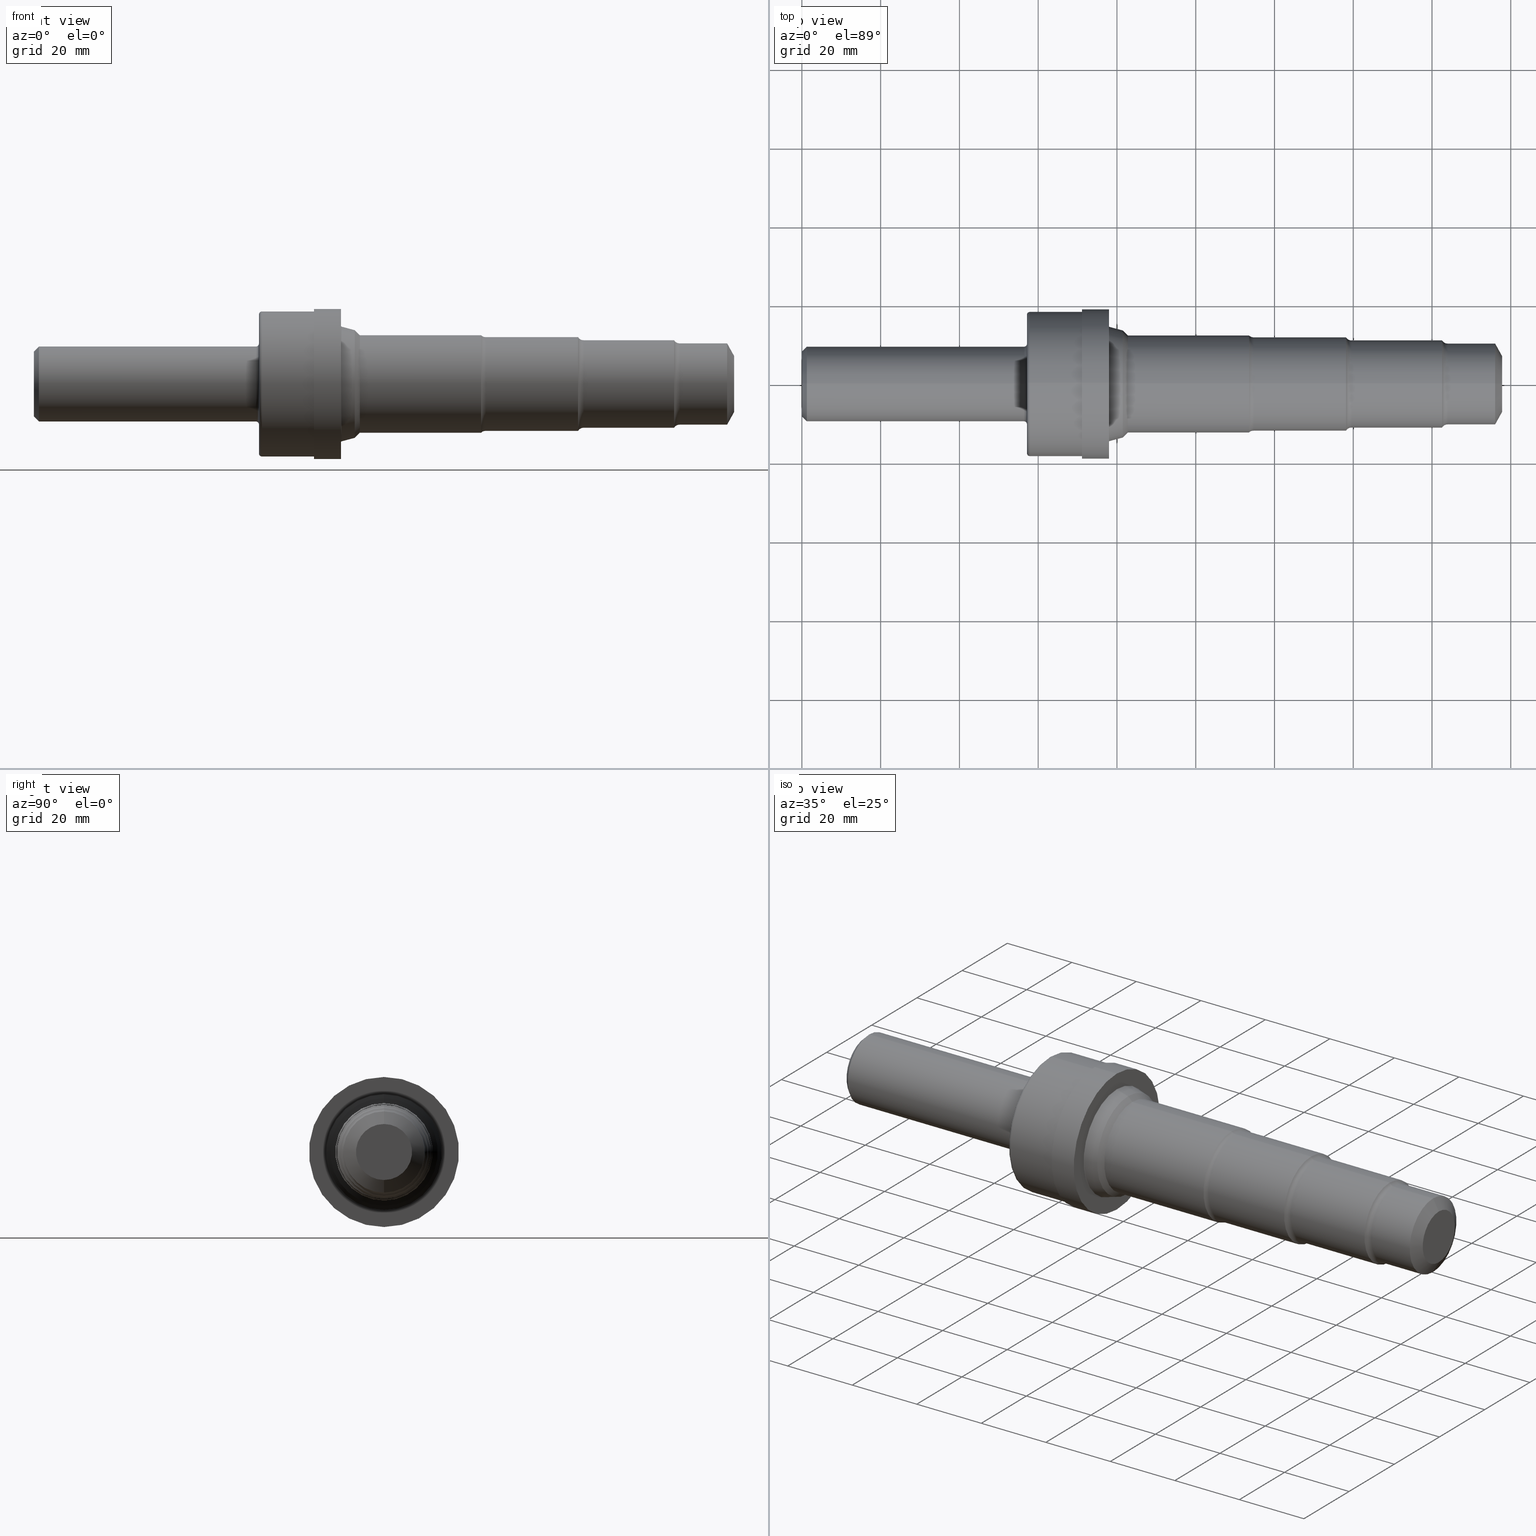
[diagram: canonical four-view strip — front | top / right | iso, engineering-drawing reading convention]
A machine part, canonical four-view strip (front | top / right | iso — engineering-drawing reading convention). The complete STEP part file that produces these views, byte-faithful:
ISO-10303-21;
HEADER;
FILE_DESCRIPTION (( 'STEP AP214' ),
    '1' );
FILE_NAME ('V12-4-FINISH-X8.STEP',
    '2019-03-22T16:18:09',
    ( '' ),
    ( '' ),
    'SwSTEP 2.0',
    'SolidWorks 2018',
    '' );
FILE_SCHEMA (( 'AUTOMOTIVE_DESIGN' ));
ENDSEC;

DATA;
#1 = DIRECTION ( 'NONE',  ( 0.0000000000000000000, 0.0000000000000000000, 1.000000000000000000 ) ) ;
#2 = DIRECTION ( 'NONE',  ( -0.0000000000000000000, 1.000000000000000000, 1.224646799147353207E-16 ) ) ;
#3 = AXIS2_PLACEMENT_3D ( 'NONE', #284, #470, #572 ) ;
#4 = ORIENTED_EDGE ( 'NONE', *, *, #298, .F. ) ;
#5 = CIRCLE ( 'NONE', #834, 0.3248500000000001386 ) ;
#6 = AXIS2_PLACEMENT_3D ( 'NONE', #243, #736, #156 ) ;
#7 = VECTOR ( 'NONE', #189, 39.37007874015748143 ) ;
#8 = APPLICATION_CONTEXT ( 'automotive_design' ) ;
#9 = AXIS2_PLACEMENT_3D ( 'NONE', #959, #324, #395 ) ;
#10 = EDGE_CURVE ( 'NONE', #241, #195, #15, .T. ) ;
#11 = DIRECTION ( 'NONE',  ( 0.0000000000000000000, 0.0000000000000000000, 1.000000000000000000 ) ) ;
#12 = EDGE_LOOP ( 'NONE', ( #302, #869, #685, #443 ) ) ;
#13 = AXIS2_PLACEMENT_3D ( 'NONE', #768, #109, #280 ) ;
#14 = ORIENTED_EDGE ( 'NONE', *, *, #378, .T. ) ;
#15 = LINE ( 'NONE', #398, #855 ) ;
#16 = ORIENTED_EDGE ( 'NONE', *, *, #126, .F. ) ;
#17 = EDGE_CURVE ( 'NONE', #287, #650, #423, .T. ) ;
#18 = EDGE_LOOP ( 'NONE', ( #532, #853, #24, #259 ) ) ;
#19 = FACE_OUTER_BOUND ( 'NONE', #1042, .T. ) ;
#20 = AXIS2_PLACEMENT_3D ( 'NONE', #740, #2, #245 ) ;
#21 = CIRCLE ( 'NONE', #81, 0.3748500000000000165 ) ;
#22 = ADVANCED_FACE ( 'NONE', ( #648 ), #200, .F. ) ;
#23 = DIRECTION ( 'NONE',  ( -1.000000000000000000, -0.0000000000000000000, -0.0000000000000000000 ) ) ;
#24 = ORIENTED_EDGE ( 'NONE', *, *, #966, .F. ) ;
#25 = ORIENTED_EDGE ( 'NONE', *, *, #460, .T. ) ;
#26 = CIRCLE ( 'NONE', #3, 0.4689000000000000390 ) ;
#27 = DIRECTION ( 'NONE',  ( -1.000000000000000000, -0.0000000000000000000, -0.0000000000000000000 ) ) ;
#28 = EDGE_CURVE ( 'NONE', #970, #329, #239, .T. ) ;
#29 = CIRCLE ( 'NONE', #1007, 0.06200000000000004813 ) ;
#30 = ORIENTED_EDGE ( 'NONE', *, *, #681, .T. ) ;
#31 = CARTESIAN_POINT ( 'NONE',  ( 2.279999999999999805, 0.0000000000000000000, 0.0000000000000000000 ) ) ;
#32 = CARTESIAN_POINT ( 'NONE',  ( 0.0000000000000000000, 4.976964591734842644E-17, -0.4063999999999999280 ) ) ;
#33 = AXIS2_PLACEMENT_3D ( 'NONE', #1005, #438, #535 ) ;
#34 = DIRECTION ( 'NONE',  ( -1.000000000000000000, -0.0000000000000000000, -0.0000000000000000000 ) ) ;
#35 = DIRECTION ( 'NONE',  ( -1.000000000000000000, -0.0000000000000000000, -0.0000000000000000000 ) ) ;
#36 = VERTEX_POINT ( 'NONE', #974 ) ;
#37 = EDGE_LOOP ( 'NONE', ( #751, #647, #669, #887 ) ) ;
#38 = ORIENTED_EDGE ( 'NONE', *, *, #177, .T. ) ;
#39 = AXIS2_PLACEMENT_3D ( 'NONE', #1030, #559, #60 ) ;
#40 = EDGE_LOOP ( 'NONE', ( #482, #757, #805, #932 ) ) ;
#41 = ORIENTED_EDGE ( 'NONE', *, *, #503, .T. ) ;
#42 = LINE ( 'NONE', #479, #730 ) ;
#43 = DIRECTION ( 'NONE',  ( -1.000000000000000000, -0.0000000000000000000, -0.0000000000000000000 ) ) ;
#44 = FACE_OUTER_BOUND ( 'NONE', #250, .T. ) ;
#45 = ADVANCED_FACE ( 'NONE', ( #615 ), #331, .F. ) ;
#46 = CARTESIAN_POINT ( 'NONE',  ( 3.258523011444504291, 0.0000000000000000000, 0.0000000000000000000 ) ) ;
#47 = DIRECTION ( 'NONE',  ( -1.000000000000000000, -0.0000000000000000000, -0.0000000000000000000 ) ) ;
#48 = VERTEX_POINT ( 'NONE', #897 ) ;
#49 = DIRECTION ( 'NONE',  ( -1.000000000000000000, -0.0000000000000000000, -0.0000000000000000000 ) ) ;
#50 = CARTESIAN_POINT ( 'NONE',  ( 3.207999999999999741, 0.0000000000000000000, 0.5380230114445049283 ) ) ;
#51 = CIRCLE ( 'NONE', #979, 0.4048500000000005983 ) ;
#52 = AXIS2_PLACEMENT_3D ( 'NONE', #618, #396, #402 ) ;
#53 = FILL_AREA_STYLE_COLOUR ( '', #829 ) ;
#54 = TOROIDAL_SURFACE ( 'NONE', #13, 0.4048500000000005983, 0.02999999999999995379 ) ;
#55 = DIRECTION ( 'NONE',  ( -1.000000000000000000, -0.0000000000000000000, -0.0000000000000000000 ) ) ;
#56 = CARTESIAN_POINT ( 'NONE',  ( 5.493693575034635401, 0.0000000000000000000, 0.0000000000000000000 ) ) ;
#57 = EDGE_LOOP ( 'NONE', ( #531, #971, #444, #590 ) ) ;
#58 = EDGE_CURVE ( 'NONE', #529, #523, #1044, .T. ) ;
#59 = CARTESIAN_POINT ( 'NONE',  ( 3.069999999999999396, 7.112196935576865621E-17, -0.5807549524098420957 ) ) ;
#60 = DIRECTION ( 'NONE',  ( 0.0000000000000000000, 0.0000000000000000000, 1.000000000000000000 ) ) ;
#61 = DIRECTION ( 'NONE',  ( -1.000000000000000000, -0.0000000000000000000, -0.0000000000000000000 ) ) ;
#62 = AXIS2_PLACEMENT_3D ( 'NONE', #228, #643, #945 ) ;
#63 = DIRECTION ( 'NONE',  ( 0.0000000000000000000, 0.0000000000000000000, 1.000000000000000000 ) ) ;
#64 = EDGE_CURVE ( 'NONE', #835, #94, #828, .T. ) ;
#65 = EDGE_LOOP ( 'NONE', ( #489, #317, #38, #536 ) ) ;
#66 = VERTEX_POINT ( 'NONE', #495 ) ;
#67 = ORIENTED_EDGE ( 'NONE', *, *, #58, .T. ) ;
#68 = ORIENTED_EDGE ( 'NONE', *, *, #79, .F. ) ;
#69 = EDGE_LOOP ( 'NONE', ( #563, #196, #613, #265 ) ) ;
#70 = CARTESIAN_POINT ( 'NONE',  ( 3.069999999999999396, 0.0000000000000000000, 0.5807549524098420957 ) ) ;
#71 = DIRECTION ( 'NONE',  ( 0.0000000000000000000, 0.0000000000000000000, 1.000000000000000000 ) ) ;
#72 = AXIS2_PLACEMENT_3D ( 'NONE', #31, #524, #601 ) ;
#73 = VERTEX_POINT ( 'NONE', #77 ) ;
#74 = FACE_OUTER_BOUND ( 'NONE', #260, .T. ) ;
#75 = SURFACE_STYLE_FILL_AREA ( #214 ) ;
#76 = DIRECTION ( 'NONE',  ( 0.0000000000000000000, 0.0000000000000000000, 1.000000000000000000 ) ) ;
#77 = CARTESIAN_POINT ( 'NONE',  ( 7.000000000000000000, 0.0000000000000000000, 0.2801166571309994247 ) ) ;
#78 = CIRCLE ( 'NONE', #20, 0.007500000000000193144 ) ;
#79 = EDGE_CURVE ( 'NONE', #646, #703, #1015, .T. ) ;
#80 = DIRECTION ( 'NONE',  ( 0.0000000000000000000, 0.0000000000000000000, 1.000000000000000000 ) ) ;
#81 = AXIS2_PLACEMENT_3D ( 'NONE', #794, #478, #1034 ) ;
#82 = DIRECTION ( 'NONE',  ( 1.000000000000000000, 0.0000000000000000000, 0.0000000000000000000 ) ) ;
#83 = DIRECTION ( 'NONE',  ( 0.0000000000000000000, 0.0000000000000000000, 1.000000000000000000 ) ) ;
#84 = DIRECTION ( 'NONE',  ( 0.0000000000000000000, 0.0000000000000000000, 1.000000000000000000 ) ) ;
#85 = VECTOR ( 'NONE', #627, 39.37007874015748143 ) ;
#86 = DIRECTION ( 'NONE',  ( -1.000000000000000000, -0.0000000000000000000, -0.0000000000000000000 ) ) ;
#87 = ORIENTED_EDGE ( 'NONE', *, *, #352, .T. ) ;
#88 = CYLINDRICAL_SURFACE ( 'NONE', #533, 0.4874999999999999889 ) ;
#89 = EDGE_CURVE ( 'NONE', #953, #318, #401, .T. ) ;
#90 = DIRECTION ( 'NONE',  ( 0.0000000000000000000, 0.0000000000000000000, 1.000000000000000000 ) ) ;
#91 = AXIS2_PLACEMENT_3D ( 'NONE', #610, #376, #964 ) ;
#92 = PLANE ( 'NONE',  #1045 ) ;
#93 = EDGE_LOOP ( 'NONE', ( #657, #320, #473, #262 ) ) ;
#94 = VERTEX_POINT ( 'NONE', #238 ) ;
#95 = EDGE_LOOP ( 'NONE', ( #101, #888, #1048, #729 ) ) ;
#96 = AXIS2_PLACEMENT_3D ( 'NONE', #226, #795, #882 ) ;
#97 = ADVANCED_FACE ( 'NONE', ( #176 ), #577, .T. ) ;
#98 = CIRCLE ( 'NONE', #969, 0.06200000000000011752 ) ;
#99 = ORIENTED_EDGE ( 'NONE', *, *, #10, .F. ) ;
#100 = EDGE_LOOP ( 'NONE', ( #453, #753, #561, #599 ) ) ;
#101 = ORIENTED_EDGE ( 'NONE', *, *, #966, .T. ) ;
#102 = ORIENTED_EDGE ( 'NONE', *, *, #656, .T. ) ;
#103 = DIRECTION ( 'NONE',  ( 0.0000000000000000000, 0.0000000000000000000, 1.000000000000000000 ) ) ;
#104 = LINE ( 'NONE', #1023, #85 ) ;
#105 = FACE_OUTER_BOUND ( 'NONE', #93, .T. ) ;
#106 = AXIS2_PLACEMENT_3D ( 'NONE', #148, #235, #291 ) ;
#107 = DIRECTION ( 'NONE',  ( -1.000000000000000000, -0.0000000000000000000, -0.0000000000000000000 ) ) ;
#108 = EDGE_CURVE ( 'NONE', #826, #507, #987, .T. ) ;
#109 = DIRECTION ( 'NONE',  ( -1.000000000000000000, -0.0000000000000000000, -0.0000000000000000000 ) ) ;
#110 = DIRECTION ( 'NONE',  ( -1.000000000000000000, -0.0000000000000000000, -0.0000000000000000000 ) ) ;
#111 = AXIS2_PLACEMENT_3D ( 'NONE', #46, #864, #63 ) ;
#112 = ORIENTED_EDGE ( 'NONE', *, *, #709, .F. ) ;
#113 = ADVANCED_FACE ( 'NONE', ( #778 ), #973, .T. ) ;
#114 = DIRECTION ( 'NONE',  ( 0.0000000000000000000, 0.0000000000000000000, 1.000000000000000000 ) ) ;
#115 = DIRECTION ( 'NONE',  ( -0.9659258262890685343, 0.0000000000000000000, 0.2588190451025196293 ) ) ;
#116 = ORIENTED_EDGE ( 'NONE', *, *, #17, .F. ) ;
#117 = EDGE_CURVE ( 'NONE', #703, #646, #130, .T. ) ;
#118 = EDGE_LOOP ( 'NONE', ( #112, #87, #411, #305 ) ) ;
#119 = PRODUCT_DEFINITION_FORMATION_WITH_SPECIFIED_SOURCE ( 'ANY', '', #257, .NOT_KNOWN. ) ;
#120 = CARTESIAN_POINT ( 'NONE',  ( 4.514276856256965509, 5.856260993522642888E-17, -0.4689000000000000390 ) ) ;
#121 = TOROIDAL_SURFACE ( 'NONE', #540, 0.4998999999999999555, 0.06200000000000008282 ) ;
#122 = AXIS2_PLACEMENT_3D ( 'NONE', #204, #776, #299 ) ;
#123 = ORIENTED_EDGE ( 'NONE', *, *, #440, .T. ) ;
#124 = CARTESIAN_POINT ( 'NONE',  ( 2.220000000000000195, 4.590588526603861143E-17, -0.3748500000000006271 ) ) ;
#125 = CARTESIAN_POINT ( 'NONE',  ( 3.207999999999999741, 6.806179838027394654E-17, -0.5380230114445049283 ) ) ;
#126 = EDGE_CURVE ( 'NONE', #441, #36, #348, .T. ) ;
#127 = ORIENTED_EDGE ( 'NONE', *, *, #955, .F. ) ;
#128 = CARTESIAN_POINT ( 'NONE',  ( 0.0000000000000000000, 0.0000000000000000000, 0.0000000000000000000 ) ) ;
#129 = VERTEX_POINT ( 'NONE', #560 ) ;
#130 = CIRCLE ( 'NONE', #677, 0.4063999999999999280 ) ;
#131 = DIRECTION ( 'NONE',  ( -1.000000000000000000, -0.0000000000000000000, -0.0000000000000000000 ) ) ;
#132 = CARTESIAN_POINT ( 'NONE',  ( 3.075558857161730941, 0.0000000000000000000, 0.5735105087126738388 ) ) ;
#133 = CARTESIAN_POINT ( 'NONE',  ( 7.000000000000000000, 0.0000000000000000000, 0.0000000000000000000 ) ) ;
#134 = CIRCLE ( 'NONE', #316, 0.7249999999999998668 ) ;
#135 = ADVANCED_FACE ( 'NONE', ( #592, #809 ), #801, .F. ) ;
#136 = DIRECTION ( 'NONE',  ( 0.0000000000000000000, -1.224646799147353700E-16, 1.000000000000000000 ) ) ;
#137 = UNCERTAINTY_MEASURE_WITH_UNIT (LENGTH_MEASURE( 1.000000000000000082E-05 ), #382, 'distance_accuracy_value', 'NONE');
#138 = DIRECTION ( 'NONE',  ( 0.0000000000000000000, 0.0000000000000000000, 1.000000000000000000 ) ) ;
#139 = CARTESIAN_POINT ( 'NONE',  ( 2.250000000000000000, 0.0000000000000000000, 0.0000000000000000000 ) ) ;
#140 = CARTESIAN_POINT ( 'NONE',  ( 3.207999999999999741, 0.0000000000000000000, 0.5380230114445049283 ) ) ;
#141 = EDGE_CURVE ( 'NONE', #73, #775, #547, .T. ) ;
#142 = CARTESIAN_POINT ( 'NONE',  ( 0.05000000000000000278, 0.0000000000000000000, 0.0000000000000000000 ) ) ;
#143 = DIRECTION ( 'NONE',  ( -1.000000000000000000, -0.0000000000000000000, -0.0000000000000000000 ) ) ;
#144 = VERTEX_POINT ( 'NONE', #632 ) ;
#145 = DIRECTION ( 'NONE',  ( 0.0000000000000000000, 0.0000000000000000000, -1.000000000000000000 ) ) ;
#146 = AXIS2_PLACEMENT_3D ( 'NONE', #734, #110, #205 ) ;
#147 = DIRECTION ( 'NONE',  ( 0.0000000000000000000, -1.224646799147352221E-16, 1.000000000000000000 ) ) ;
#148 = CARTESIAN_POINT ( 'NONE',  ( 4.514276856256965509, 0.0000000000000000000, 0.0000000000000000000 ) ) ;
#149 = DIRECTION ( 'NONE',  ( 0.0000000000000000000, 0.0000000000000000000, 1.000000000000000000 ) ) ;
#150 = CARTESIAN_POINT ( 'NONE',  ( 5.493693575034635401, 0.0000000000000000000, 0.0000000000000000000 ) ) ;
#151 = CIRCLE ( 'NONE', #490, 0.4874999999999999889 ) ;
#152 = CARTESIAN_POINT ( 'NONE',  ( 2.250000000000000000, 0.0000000000000000000, 0.6949999999999999512 ) ) ;
#153 = AXIS2_PLACEMENT_3D ( 'NONE', #799, #812, #407 ) ;
#154 = DIRECTION ( 'NONE',  ( -1.000000000000000000, -0.0000000000000000000, -0.0000000000000000000 ) ) ;
#155 = ORIENTED_EDGE ( 'NONE', *, *, #687, .T. ) ;
#156 = DIRECTION ( 'NONE',  ( 0.0000000000000000000, 0.0000000000000000000, 1.000000000000000000 ) ) ;
#157 = ORIENTED_EDGE ( 'NONE', *, *, #230, .F. ) ;
#158 = CARTESIAN_POINT ( 'NONE',  ( 0.0000000000000000000, 0.0000000000000000000, 0.0000000000000000000 ) ) ;
#159 = CIRCLE ( 'NONE', #767, 0.5735105087126738388 ) ;
#160 = DIRECTION ( 'NONE',  ( 0.0000000000000000000, 0.0000000000000000000, 1.000000000000000000 ) ) ;
#161 = LENGTH_MEASURE_WITH_UNIT ( LENGTH_MEASURE( 0.02539999999999999897 ), #412 );
#162 = EDGE_LOOP ( 'NONE', ( #989, #581, #454, #909 ) ) ;
#163 = LINE ( 'NONE', #995, #351 ) ;
#164 = CARTESIAN_POINT ( 'NONE',  ( 3.069999999999999840, 0.0000000000000000000, 0.0000000000000000000 ) ) ;
#165 = AXIS2_PLACEMENT_3D ( 'NONE', #851, #474, #567 ) ;
#166 = EDGE_CURVE ( 'NONE', #917, #144, #332, .T. ) ;
#167 = AXIS2_PLACEMENT_3D ( 'NONE', #319, #392, #80 ) ;
#168 = LINE ( 'NONE', #541, #1001 ) ;
#169 = DIRECTION ( 'NONE',  ( 1.000000000000000000, 0.0000000000000000000, 0.0000000000000000000 ) ) ;
#170 = EDGE_CURVE ( 'NONE', #431, #695, #159, .T. ) ;
#171 = TOROIDAL_SURFACE ( 'NONE', #422, 0.6949999999999999512, 0.02999999999999995379 ) ;
#172 =( GEOMETRIC_REPRESENTATION_CONTEXT ( 3 ) GLOBAL_UNCERTAINTY_ASSIGNED_CONTEXT ( ( #435 ) ) GLOBAL_UNIT_ASSIGNED_CONTEXT ( ( #906, #980, #816 ) ) REPRESENTATION_CONTEXT ( 'NONE', 'WORKASPACE' ) );
#173 = ADVANCED_FACE ( 'NONE', ( #763 ), #940, .F. ) ;
#174 = AXIS2_PLACEMENT_3D ( 'NONE', #363, #449, #850 ) ;
#175 = ORIENTED_EDGE ( 'NONE', *, *, #467, .F. ) ;
#176 = FACE_OUTER_BOUND ( 'NONE', #603, .T. ) ;
#177 = EDGE_CURVE ( 'NONE', #288, #66, #741, .T. ) ;
#178 = VECTOR ( 'NONE', #61, 39.37007874015748143 ) ;
#179 = CARTESIAN_POINT ( 'NONE',  ( 3.069999999999999840, 0.0000000000000000000, 0.7500000000000001110 ) ) ;
#180 = FACE_OUTER_BOUND ( 'NONE', #286, .T. ) ;
#181 = CARTESIAN_POINT ( 'NONE',  ( 4.469999999999999751, 0.0000000000000000000, 0.4874999999999999889 ) ) ;
#182 = CARTESIAN_POINT ( 'NONE',  ( 3.075558857161730941, 7.067837511650164673E-17, -0.5735105087126738388 ) ) ;
#183 = CIRCLE ( 'NONE', #165, 0.4689000000000000390 ) ;
#184 = EDGE_LOOP ( 'NONE', ( #655, #842 ) ) ;
#185 = EDGE_CURVE ( 'NONE', #421, #431, #104, .T. ) ;
#186 = CARTESIAN_POINT ( 'NONE',  ( 2.220000000000000195, 0.0000000000000000000, 0.3748500000000006271 ) ) ;
#187 = CIRCLE ( 'NONE', #616, 0.4063999999999999835 ) ;
#188 = AXIS2_PLACEMENT_3D ( 'NONE', #928, #857, #296 ) ;
#189 = DIRECTION ( 'NONE',  ( -1.000000000000000000, -0.0000000000000000000, -0.0000000000000000000 ) ) ;
#190 = DIRECTION ( 'NONE',  ( 0.0000000000000000000, 0.0000000000000000000, 1.000000000000000000 ) ) ;
#191 = CIRCLE ( 'NONE', #39, 0.4874999999999999889 ) ;
#192 = ADVANCED_FACE ( 'NONE', ( #517 ), #273, .T. ) ;
#193 = CARTESIAN_POINT ( 'NONE',  ( 6.453979162646339418, 0.0000000000000000000, 0.4683999999999999830 ) ) ;
#194 = AXIS2_PLACEMENT_3D ( 'NONE', #640, #566, #147 ) ;
#195 = VERTEX_POINT ( 'NONE', #997 ) ;
#196 = ORIENTED_EDGE ( 'NONE', *, *, #921, .T. ) ;
#197 = ORIENTED_EDGE ( 'NONE', *, *, #1002, .F. ) ;
#198 = VERTEX_POINT ( 'NONE', #50 ) ;
#199 = CARTESIAN_POINT ( 'NONE',  ( 2.220000000000000195, 0.0000000000000000000, 0.0000000000000000000 ) ) ;
#200 = TOROIDAL_SURFACE ( 'NONE', #605, 0.4683999999999999830, 0.06200000000000001343 ) ;
#201 = ADVANCED_FACE ( 'NONE', ( #919 ), #902, .T. ) ;
#202 = ORIENTED_EDGE ( 'NONE', *, *, #352, .F. ) ;
#203 = LINE ( 'NONE', #1008, #1049 ) ;
#204 = CARTESIAN_POINT ( 'NONE',  ( 3.207999999999999741, 0.0000000000000000000, 0.0000000000000000000 ) ) ;
#205 = DIRECTION ( 'NONE',  ( 0.0000000000000000000, 0.0000000000000000000, 1.000000000000000000 ) ) ;
#206 = CIRCLE ( 'NONE', #62, 0.4379000000000000115 ) ;
#207 = CARTESIAN_POINT ( 'NONE',  ( 2.250000000000000000, 0.0000000000000000000, 0.0000000000000000000 ) ) ;
#208 = ADVANCED_FACE ( 'NONE', ( #498 ), #468, .T. ) ;
#209 = DIRECTION ( 'NONE',  ( -1.000000000000000000, -0.0000000000000000000, -0.0000000000000000000 ) ) ;
#210 = DIRECTION ( 'NONE',  ( -1.000000000000000000, -0.0000000000000000000, -0.0000000000000000000 ) ) ;
#211 = EDGE_CURVE ( 'NONE', #830, #703, #303, .T. ) ;
#212 = CARTESIAN_POINT ( 'NONE',  ( 0.0000000000000000000, 0.0000000000000000000, 0.0000000000000000000 ) ) ;
#213 = DIRECTION ( 'NONE',  ( -1.000000000000000000, -0.0000000000000000000, -0.0000000000000000000 ) ) ;
#214 = FILL_AREA_STYLE ('',( #708 ) ) ;
#215 = DIRECTION ( 'NONE',  ( 0.0000000000000000000, 0.0000000000000000000, 1.000000000000000000 ) ) ;
#216 = ORIENTED_EDGE ( 'NONE', *, *, #836, .T. ) ;
#217 = DIRECTION ( 'NONE',  ( 0.0000000000000000000, 0.0000000000000000000, 1.000000000000000000 ) ) ;
#218 = AXIS2_PLACEMENT_3D ( 'NONE', #354, #1000, #300 ) ;
#219 = FACE_OUTER_BOUND ( 'NONE', #958, .T. ) ;
#220 = ORIENTED_EDGE ( 'NONE', *, *, #914, .T. ) ;
#221 =( NAMED_UNIT ( * ) PLANE_ANGLE_UNIT ( ) SI_UNIT ( $, .RADIAN. ) );
#222 = DIRECTION ( 'NONE',  ( 0.0000000000000000000, 0.0000000000000000000, 1.000000000000000000 ) ) ;
#223 = CARTESIAN_POINT ( 'NONE',  ( 0.0000000000000000000, 0.0000000000000000000, 0.7249999999999998668 ) ) ;
#224 = FACE_OUTER_BOUND ( 'NONE', #446, .T. ) ;
#225 = EDGE_CURVE ( 'NONE', #543, #48, #51, .T. ) ;
#226 = CARTESIAN_POINT ( 'NONE',  ( 5.493693575034635401, 0.0000000000000000000, 0.4998999999999999555 ) ) ;
#227 = DIRECTION ( 'NONE',  ( -1.000000000000000000, -0.0000000000000000000, -0.0000000000000000000 ) ) ;
#228 = CARTESIAN_POINT ( 'NONE',  ( 6.399999999999999467, 0.0000000000000000000, 0.0000000000000000000 ) ) ;
#229 = CARTESIAN_POINT ( 'NONE',  ( 2.279999999999999805, 0.0000000000000000000, 0.0000000000000000000 ) ) ;
#230 = EDGE_CURVE ( 'NONE', #195, #886, #251, .T. ) ;
#231 = CARTESIAN_POINT ( 'NONE',  ( 3.069999999999999840, 0.0000000000000000000, 0.0000000000000000000 ) ) ;
#232 = ORIENTED_EDGE ( 'NONE', *, *, #499, .T. ) ;
#233 = DIRECTION ( 'NONE',  ( 0.0000000000000000000, -1.224646799147352221E-16, 1.000000000000000000 ) ) ;
#234 = ORIENTED_EDGE ( 'NONE', *, *, #347, .T. ) ;
#235 = DIRECTION ( 'NONE',  ( -1.000000000000000000, -0.0000000000000000000, -0.0000000000000000000 ) ) ;
#236 = EDGE_LOOP ( 'NONE', ( #232, #1011, #386, #349 ) ) ;
#237 = EDGE_LOOP ( 'NONE', ( #346, #691 ) ) ;
#238 = CARTESIAN_POINT ( 'NONE',  ( 0.05000000000000000278, 0.0000000000000000000, -0.3748500000000000165 ) ) ;
#239 = CIRCLE ( 'NONE', #430, 0.5807549524098420957 ) ;
#240 = CARTESIAN_POINT ( 'NONE',  ( 2.799999999999999822, 0.0000000000000000000, 0.0000000000000000000 ) ) ;
#241 = VERTEX_POINT ( 'NONE', #714 ) ;
#242 = FACE_OUTER_BOUND ( 'NONE', #515, .T. ) ;
#243 = CARTESIAN_POINT ( 'NONE',  ( 0.0000000000000000000, 0.0000000000000000000, 0.0000000000000000000 ) ) ;
#244 = EDGE_CURVE ( 'NONE', #198, #695, #658, .T. ) ;
#245 = DIRECTION ( 'NONE',  ( 0.0000000000000000000, -1.224646799147356905E-16, 1.000000000000000000 ) ) ;
#246 = CYLINDRICAL_SURFACE ( 'NONE', #340, 0.3748500000000003496 ) ;
#247 = CARTESIAN_POINT ( 'NONE',  ( 3.069999999999999396, 0.0000000000000000000, 0.0000000000000000000 ) ) ;
#248 = CARTESIAN_POINT ( 'NONE',  ( 3.258523011444504291, 0.0000000000000000000, 0.0000000000000000000 ) ) ;
#249 = VECTOR ( 'NONE', #701, 39.37007874015748854 ) ;
#250 = EDGE_LOOP ( 'NONE', ( #911, #984, #30, #1009 ) ) ;
#251 = CIRCLE ( 'NONE', #924, 0.4378999999999998449 ) ;
#252 = DIRECTION ( 'NONE',  ( -1.000000000000000000, -0.0000000000000000000, -0.0000000000000000000 ) ) ;
#253 = LINE ( 'NONE', #688, #875 ) ;
#254 = EDGE_CURVE ( 'NONE', #645, #129, #26, .T. ) ;
#255 = APPLICATION_CONTEXT ( 'automotive_design' ) ;
#256 = AXIS2_PLACEMENT_3D ( 'NONE', #568, #552, #309 ) ;
#257 = PRODUCT ( 'V12-4-FINISH-X8', 'V12-4-FINISH-X8', '', ( #747 ) ) ;
#258 = DIRECTION ( 'NONE',  ( -0.0000000000000000000, 1.000000000000000000, 1.224646799147353207E-16 ) ) ;
#259 = ORIENTED_EDGE ( 'NONE', *, *, #385, .F. ) ;
#260 = EDGE_LOOP ( 'NONE', ( #679, #275, #712, #1041 ) ) ;
#261 = EDGE_LOOP ( 'NONE', ( #818, #939, #575, #202 ) ) ;
#262 = ORIENTED_EDGE ( 'NONE', *, *, #333, .F. ) ;
#263 = ORIENTED_EDGE ( 'NONE', *, *, #656, .F. ) ;
#264 = AXIS2_PLACEMENT_3D ( 'NONE', #719, #143, #876 ) ;
#265 = ORIENTED_EDGE ( 'NONE', *, *, #525, .F. ) ;
#266 = ORIENTED_EDGE ( 'NONE', *, *, #873, .F. ) ;
#267 = CIRCLE ( 'NONE', #218, 0.7249999999999998668 ) ;
#268 = CONICAL_SURFACE ( 'NONE', #808, 0.4874999999999999889, 0.7853981633974523868 ) ;
#269 = CARTESIAN_POINT ( 'NONE',  ( 0.0000000000000000000, 0.0000000000000000000, 0.0000000000000000000 ) ) ;
#270 = VERTEX_POINT ( 'NONE', #313 ) ;
#271 = EDGE_CURVE ( 'NONE', #270, #830, #872, .T. ) ;
#272 = ORIENTED_EDGE ( 'NONE', *, *, #948, .T. ) ;
#273 = CYLINDRICAL_SURFACE ( 'NONE', #1032, 0.4874999999999999889 ) ;
#274 = ADVANCED_FACE ( 'NONE', ( #219 ), #1028, .T. ) ;
#275 = ORIENTED_EDGE ( 'NONE', *, *, #584, .T. ) ;
#276 = AXIS2_PLACEMENT_3D ( 'NONE', #128, #357, #644 ) ;
#277 = CIRCLE ( 'NONE', #642, 0.5807549524098420957 ) ;
#278 = CARTESIAN_POINT ( 'NONE',  ( 0.0000000000000000000, 8.878689293818309581E-17, -0.7249999999999998668 ) ) ;
#279 = EDGE_CURVE ( 'NONE', #66, #288, #183, .T. ) ;
#280 = DIRECTION ( 'NONE',  ( 0.0000000000000000000, 0.0000000000000000000, 1.000000000000000000 ) ) ;
#281 = CARTESIAN_POINT ( 'NONE',  ( 2.250000000000000000, 8.694992273946205774E-17, -0.6949999999999999512 ) ) ;
#282 = AXIS2_PLACEMENT_3D ( 'NONE', #330, #652, #894 ) ;
#283 = CARTESIAN_POINT ( 'NONE',  ( 0.0000000000000000000, 4.590588526603858678E-17, -0.3748500000000003496 ) ) ;
#284 = CARTESIAN_POINT ( 'NONE',  ( 5.439999999999999503, 0.0000000000000000000, 0.0000000000000000000 ) ) ;
#285 = EDGE_CURVE ( 'NONE', #826, #917, #410, .T. ) ;
#286 = EDGE_LOOP ( 'NONE', ( #743, #735, #574, #127 ) ) ;
#287 = VERTEX_POINT ( 'NONE', #186 ) ;
#288 = VERTEX_POINT ( 'NONE', #120 ) ;
#289 = ADVANCED_FACE ( 'NONE', ( #631 ), #680, .F. ) ;
#290 = DIRECTION ( 'NONE',  ( 0.0000000000000000000, 0.0000000000000000000, -1.000000000000000000 ) ) ;
#291 = DIRECTION ( 'NONE',  ( 0.0000000000000000000, 0.0000000000000000000, 1.000000000000000000 ) ) ;
#292 = ORIENTED_EDGE ( 'NONE', *, *, #475, .T. ) ;
#293 = CIRCLE ( 'NONE', #660, 0.4874999999999999889 ) ;
#294 = COLOUR_RGB ( '',0.7529411764705882248, 0.7529411764705882248, 0.7529411764705882248 ) ;
#295 = DIRECTION ( 'NONE',  ( 0.0000000000000000000, 0.0000000000000000000, 1.000000000000000000 ) ) ;
#296 = DIRECTION ( 'NONE',  ( 0.0000000000000000000, 0.0000000000000000000, -1.000000000000000000 ) ) ;
#297 = CIRCLE ( 'NONE', #759, 0.6949999999999999512 ) ;
#298 = EDGE_CURVE ( 'NONE', #523, #529, #5, .T. ) ;
#299 = DIRECTION ( 'NONE',  ( 0.0000000000000000000, 0.0000000000000000000, 1.000000000000000000 ) ) ;
#300 = DIRECTION ( 'NONE',  ( 0.0000000000000000000, 0.0000000000000000000, 1.000000000000000000 ) ) ;
#301 = EDGE_LOOP ( 'NONE', ( #761, #737 ) ) ;
#302 = ORIENTED_EDGE ( 'NONE', *, *, #796, .F. ) ;
#303 = LINE ( 'NONE', #32, #706 ) ;
#304 = CARTESIAN_POINT ( 'NONE',  ( 7.000000000000000000, 0.0000000000000000000, 0.0000000000000000000 ) ) ;
#305 = ORIENTED_EDGE ( 'NONE', *, *, #836, .F. ) ;
#306 = DIRECTION ( 'NONE',  ( 0.0000000000000000000, 0.0000000000000000000, 1.000000000000000000 ) ) ;
#307 = FACE_OUTER_BOUND ( 'NONE', #118, .T. ) ;
#308 = SURFACE_STYLE_USAGE ( .BOTH. , #786 ) ;
#309 = DIRECTION ( 'NONE',  ( 0.0000000000000000000, 0.0000000000000000000, -1.000000000000000000 ) ) ;
#310 = CARTESIAN_POINT ( 'NONE',  ( 3.075558857161730941, 0.0000000000000000000, 0.0000000000000000000 ) ) ;
#311 = EDGE_LOOP ( 'NONE', ( #155, #885, #157, #99 ) ) ;
#312 = DIRECTION ( 'NONE',  ( -0.7071067811865445751, 8.659560562354967371E-17, -0.7071067811865503483 ) ) ;
#313 = CARTESIAN_POINT ( 'NONE',  ( 6.929999999999999716, 0.0000000000000000000, 0.4063999999999999835 ) ) ;
#314 = EDGE_CURVE ( 'NONE', #509, #953, #817, .T. ) ;
#315 = DIRECTION ( 'NONE',  ( -1.000000000000000000, -0.0000000000000000000, -0.0000000000000000000 ) ) ;
#316 = AXIS2_PLACEMENT_3D ( 'NONE', #429, #764, #350 ) ;
#317 = ORIENTED_EDGE ( 'NONE', *, *, #322, .T. ) ;
#318 = VERTEX_POINT ( 'NONE', #152 ) ;
#319 = CARTESIAN_POINT ( 'NONE',  ( 3.207999999999999741, 0.0000000000000000000, 0.0000000000000000000 ) ) ;
#320 = ORIENTED_EDGE ( 'NONE', *, *, #285, .T. ) ;
#321 = DIRECTION ( 'NONE',  ( -1.000000000000000000, -0.0000000000000000000, -0.0000000000000000000 ) ) ;
#322 = EDGE_CURVE ( 'NONE', #441, #288, #510, .T. ) ;
#323 = VERTEX_POINT ( 'NONE', #281 ) ;
#324 = DIRECTION ( 'NONE',  ( -1.000000000000000000, -0.0000000000000000000, -0.0000000000000000000 ) ) ;
#325 = CARTESIAN_POINT ( 'NONE',  ( 4.469999999999999751, 0.0000000000000000000, 0.0000000000000000000 ) ) ;
#326 = AXIS2_PLACEMENT_3D ( 'NONE', #207, #131, #1021 ) ;
#327 = TOROIDAL_SURFACE ( 'NONE', #698, 0.5807549524098420957, 0.007500000000000209624 ) ;
#328 = CARTESIAN_POINT ( 'NONE',  ( 2.799999999999999822, 9.184850993605150903E-17, -0.7500000000000001110 ) ) ;
#329 = VERTEX_POINT ( 'NONE', #70 ) ;
#330 = CARTESIAN_POINT ( 'NONE',  ( 3.069999999999999840, 0.7500000000000001110, 0.0000000000000000000 ) ) ;
#331 = PLANE ( 'NONE',  #583 ) ;
#332 = CIRCLE ( 'NONE', #716, 0.7500000000000001110 ) ;
#333 = EDGE_CURVE ( 'NONE', #507, #144, #912, .T. ) ;
#334 = LINE ( 'NONE', #918, #944 ) ;
#335 = DIRECTION ( 'NONE',  ( -1.000000000000000000, -0.0000000000000000000, -0.0000000000000000000 ) ) ;
#336 = AXIS2_PLACEMENT_3D ( 'NONE', #546, #787, #215 ) ;
#337 = EDGE_CURVE ( 'NONE', #441, #534, #293, .T. ) ;
#338 = SURFACE_SIDE_STYLE ('',( #619 ) ) ;
#339 = ORIENTED_EDGE ( 'NONE', *, *, #347, .F. ) ;
#340 = AXIS2_PLACEMENT_3D ( 'NONE', #881, #555, #11 ) ;
#341 = CARTESIAN_POINT ( 'NONE',  ( 2.220000000000000195, 4.957982566348066292E-17, -0.4048500000000005983 ) ) ;
#342 = STYLED_ITEM ( 'NONE', ( #404 ), #748 ) ;
#343 = CIRCLE ( 'NONE', #326, 0.6949999999999999512 ) ;
#344 = ADVANCED_FACE ( 'NONE', ( #491 ), #893, .T. ) ;
#345 = EDGE_LOOP ( 'NONE', ( #898, #663, #910, #827 ) ) ;
#346 = ORIENTED_EDGE ( 'NONE', *, *, #1026, .F. ) ;
#347 = EDGE_CURVE ( 'NONE', #129, #66, #42, .T. ) ;
#348 = LINE ( 'NONE', #957, #369 ) ;
#349 = ORIENTED_EDGE ( 'NONE', *, *, #89, .F. ) ;
#350 = DIRECTION ( 'NONE',  ( 0.0000000000000000000, 0.0000000000000000000, 1.000000000000000000 ) ) ;
#351 = VECTOR ( 'NONE', #847, 39.37007874015748143 ) ;
#352 = EDGE_CURVE ( 'NONE', #739, #953, #267, .T. ) ;
#353 = CARTESIAN_POINT ( 'NONE',  ( 2.799999999999999822, 0.0000000000000000000, 0.7249999999999998668 ) ) ;
#354 = CARTESIAN_POINT ( 'NONE',  ( 2.279999999999999805, 0.0000000000000000000, 0.0000000000000000000 ) ) ;
#355 = EDGE_CURVE ( 'NONE', #695, #431, #674, .T. ) ;
#356 = ADVANCED_FACE ( 'NONE', ( #74 ), #651, .T. ) ;
#357 = DIRECTION ( 'NONE',  ( -1.000000000000000000, -0.0000000000000000000, -0.0000000000000000000 ) ) ;
#358 = AXIS2_PLACEMENT_3D ( 'NONE', #133, #210, #839 ) ;
#359 = LINE ( 'NONE', #461, #249 ) ;
#360 = ORIENTED_EDGE ( 'NONE', *, *, #562, .F. ) ;
#361 = DIRECTION ( 'NONE',  ( -1.000000000000000000, -0.0000000000000000000, -0.0000000000000000000 ) ) ;
#362 = TOROIDAL_SURFACE ( 'NONE', #365, 0.5308999999999999275, 0.06199999999999990935 ) ;
#363 = CARTESIAN_POINT ( 'NONE',  ( 0.0000000000000000000, 0.0000000000000000000, 0.0000000000000000000 ) ) ;
#364 = DIRECTION ( 'NONE',  ( -1.000000000000000000, -0.0000000000000000000, -0.0000000000000000000 ) ) ;
#365 = AXIS2_PLACEMENT_3D ( 'NONE', #1035, #722, #497 ) ;
#366 = VERTEX_POINT ( 'NONE', #433 ) ;
#367 = CARTESIAN_POINT ( 'NONE',  ( 6.399999999999999467, 5.362728333466260515E-17, -0.4379000000000000115 ) ) ;
#368 = ORIENTED_EDGE ( 'NONE', *, *, #499, .F. ) ;
#369 = VECTOR ( 'NONE', #390, 39.37007874015748143 ) ;
#370 = MECHANICAL_DESIGN_GEOMETRIC_PRESENTATION_REPRESENTATION (  '', ( #342 ), #172 ) ;
#371 = CARTESIAN_POINT ( 'NONE',  ( 2.799999999999999822, 0.7249999999999998668, 0.0000000000000000000 ) ) ;
#372 = ADVANCED_FACE ( 'NONE', ( #860, #242 ), #607, .F. ) ;
#373 = ORIENTED_EDGE ( 'NONE', *, *, #166, .T. ) ;
#374 = FACE_OUTER_BOUND ( 'NONE', #505, .T. ) ;
#375 = CARTESIAN_POINT ( 'NONE',  ( 0.05000000000000000278, 4.590588526603853748E-17, 0.3748500000000000165 ) ) ;
#376 = DIRECTION ( 'NONE',  ( -1.000000000000000000, -0.0000000000000000000, -0.0000000000000000000 ) ) ;
#377 = CONICAL_SURFACE ( 'NONE', #167, 0.5380230114445049283, 0.2617993877991482421 ) ;
#378 = EDGE_CURVE ( 'NONE', #129, #645, #425, .T. ) ;
#379 = DIRECTION ( 'NONE',  ( 0.0000000000000000000, 0.0000000000000000000, 1.000000000000000000 ) ) ;
#380 = ADVANCED_FACE ( 'NONE', ( #19 ), #455, .F. ) ;
#381 = APPLICATION_PROTOCOL_DEFINITION ( 'draft international standard', 'automotive_design', 1998, #255 ) ;
#382 =( CONVERSION_BASED_UNIT ( 'INCH', #477 ) LENGTH_UNIT ( ) NAMED_UNIT ( #721 ) );
#383 = AXIS2_PLACEMENT_3D ( 'NONE', #636, #476, #952 ) ;
#384 = ADVANCED_FACE ( 'NONE', ( #620 ), #811, .T. ) ;
#385 = EDGE_CURVE ( 'NONE', #534, #366, #832, .T. ) ;
#386 = ORIENTED_EDGE ( 'NONE', *, *, #856, .F. ) ;
#387 = DIRECTION ( 'NONE',  ( 0.0000000000000000000, 0.0000000000000000000, 1.000000000000000000 ) ) ;
#388 = FACE_OUTER_BOUND ( 'NONE', #261, .T. ) ;
#389 = PRESENTATION_LAYER_ASSIGNMENT (  '', '', ( #823 ) ) ;
#390 = DIRECTION ( 'NONE',  ( -1.000000000000000000, -0.0000000000000000000, -0.0000000000000000000 ) ) ;
#391 = DIMENSIONAL_EXPONENTS ( 1.000000000000000000, 0.0000000000000000000, 0.0000000000000000000, 0.0000000000000000000, 0.0000000000000000000, 0.0000000000000000000, 0.0000000000000000000 ) ;
#392 = DIRECTION ( 'NONE',  ( -1.000000000000000000, -0.0000000000000000000, -0.0000000000000000000 ) ) ;
#393 = FACE_OUTER_BOUND ( 'NONE', #40, .T. ) ;
#394 = PRODUCT_DEFINITION ( 'UNKNOWN', '', #119, #513 ) ;
#395 = DIRECTION ( 'NONE',  ( 0.0000000000000000000, 0.0000000000000000000, 1.000000000000000000 ) ) ;
#396 = DIRECTION ( 'NONE',  ( -1.000000000000000000, -0.0000000000000000000, -0.0000000000000000000 ) ) ;
#397 = ORIENTED_EDGE ( 'NONE', *, *, #254, .T. ) ;
#398 = CARTESIAN_POINT ( 'NONE',  ( 0.0000000000000000000, 0.0000000000000000000, 0.4378999999999999004 ) ) ;
#399 = EDGE_LOOP ( 'NONE', ( #16, #483, #752, #565 ) ) ;
#400 = DIRECTION ( 'NONE',  ( -1.000000000000000000, -0.0000000000000000000, -0.0000000000000000000 ) ) ;
#401 = CIRCLE ( 'NONE', #901, 0.02999999999999995379 ) ;
#402 = DIRECTION ( 'NONE',  ( 0.0000000000000000000, 0.0000000000000000000, 1.000000000000000000 ) ) ;
#403 = DIRECTION ( 'NONE',  ( 0.0000000000000000000, 0.0000000000000000000, 1.000000000000000000 ) ) ;
#404 = PRESENTATION_STYLE_ASSIGNMENT (( #905 ) ) ;
#405 = EDGE_CURVE ( 'NONE', #270, #646, #203, .T. ) ;
#406 = CIRCLE ( 'NONE', #188, 0.06199999999999990935 ) ;
#407 = DIRECTION ( 'NONE',  ( 0.0000000000000000000, 0.0000000000000000000, 1.000000000000000000 ) ) ;
#408 = DIRECTION ( 'NONE',  ( 0.0000000000000000000, -1.224646799147352468E-16, 1.000000000000000000 ) ) ;
#409 = EDGE_CURVE ( 'NONE', #534, #66, #406, .T. ) ;
#410 = LINE ( 'NONE', #1019, #837 ) ;
#411 = ORIENTED_EDGE ( 'NONE', *, *, #89, .T. ) ;
#412 =( LENGTH_UNIT ( ) NAMED_UNIT ( * ) SI_UNIT ( $, .METRE. ) );
#413 = EDGE_CURVE ( 'NONE', #775, #73, #1017, .T. ) ;
#414 = CIRCLE ( 'NONE', #756, 0.4379000000000000115 ) ;
#415 = EDGE_LOOP ( 'NONE', ( #445, #102, #690, #926 ) ) ;
#416 = DIRECTION ( 'NONE',  ( -1.000000000000000000, 0.0000000000000000000, -0.0000000000000000000 ) ) ;
#417 = CIRCLE ( 'NONE', #1038, 0.4048500000000005983 ) ;
#418 = AXIS2_PLACEMENT_3D ( 'NONE', #994, #432, #988 ) ;
#419 = DIRECTION ( 'NONE',  ( 0.0000000000000000000, 0.0000000000000000000, -1.000000000000000000 ) ) ;
#420 = EDGE_LOOP ( 'NONE', ( #762, #25, #972, #465 ) ) ;
#421 = VERTEX_POINT ( 'NONE', #125 ) ;
#422 = AXIS2_PLACEMENT_3D ( 'NONE', #229, #86, #621 ) ;
#423 = CIRCLE ( 'NONE', #628, 0.3748500000000006271 ) ;
#424 = EDGE_LOOP ( 'NONE', ( #900, #116, #123, #668 ) ) ;
#425 = CIRCLE ( 'NONE', #336, 0.4689000000000000390 ) ;
#426 = ADVANCED_FACE ( 'NONE', ( #374 ), #580, .T. ) ;
#427 =( GEOMETRIC_REPRESENTATION_CONTEXT ( 3 ) GLOBAL_UNCERTAINTY_ASSIGNED_CONTEXT ( ( #899 ) ) GLOBAL_UNIT_ASSIGNED_CONTEXT ( ( #582, #221, #1024 ) ) REPRESENTATION_CONTEXT ( 'NONE', 'WORKASPACE' ) );
#428 = VECTOR ( 'NONE', #504, 39.37007874015748854 ) ;
#429 = CARTESIAN_POINT ( 'NONE',  ( 2.279999999999999805, 0.0000000000000000000, 0.0000000000000000000 ) ) ;
#430 = AXIS2_PLACEMENT_3D ( 'NONE', #247, #738, #160 ) ;
#431 = VERTEX_POINT ( 'NONE', #182 ) ;
#432 = DIRECTION ( 'NONE',  ( -1.000000000000000000, -0.0000000000000000000, -0.0000000000000000000 ) ) ;
#433 = CARTESIAN_POINT ( 'NONE',  ( 3.258523011444504291, 0.0000000000000000000, 0.4874999999999999889 ) ) ;
#434 = VECTOR ( 'NONE', #115, 39.37007874015748143 ) ;
#435 = UNCERTAINTY_MEASURE_WITH_UNIT (LENGTH_MEASURE( 1.000000000000000082E-05 ), #906, 'distance_accuracy_value', 'NONE');
#436 = AXIS2_PLACEMENT_3D ( 'NONE', #371, #728, #723 ) ;
#437 = DIRECTION ( 'NONE',  ( 0.0000000000000000000, -1.000000000000000000, 0.0000000000000000000 ) ) ;
#438 = DIRECTION ( 'NONE',  ( -1.000000000000000000, -0.0000000000000000000, -0.0000000000000000000 ) ) ;
#439 = VECTOR ( 'NONE', #846, 39.37007874015748854 ) ;
#440 = EDGE_CURVE ( 'NONE', #287, #48, #594, .T. ) ;
#441 = VERTEX_POINT ( 'NONE', #522 ) ;
#442 = CARTESIAN_POINT ( 'NONE',  ( 2.220000000000000195, 0.0000000000000000000, 0.0000000000000000000 ) ) ;
#443 = ORIENTED_EDGE ( 'NONE', *, *, #79, .T. ) ;
#444 = ORIENTED_EDGE ( 'NONE', *, *, #333, .T. ) ;
#445 = ORIENTED_EDGE ( 'NONE', *, *, #185, .F. ) ;
#446 = EDGE_LOOP ( 'NONE', ( #175, #397, #234, #986 ) ) ;
#447 = EDGE_LOOP ( 'NONE', ( #611, #216 ) ) ;
#448 = PRODUCT_RELATED_PRODUCT_CATEGORY ( 'part', '', ( #257 ) ) ;
#449 = DIRECTION ( 'NONE',  ( -1.000000000000000000, -0.0000000000000000000, -0.0000000000000000000 ) ) ;
#450 = DIRECTION ( 'NONE',  ( -1.000000000000000000, -0.0000000000000000000, -0.0000000000000000000 ) ) ;
#451 = ORIENTED_EDGE ( 'NONE', *, *, #815, .F. ) ;
#452 = AXIS2_PLACEMENT_3D ( 'NONE', #199, #773, #295 ) ;
#453 = ORIENTED_EDGE ( 'NONE', *, *, #514, .T. ) ;
#454 = ORIENTED_EDGE ( 'NONE', *, *, #789, .T. ) ;
#455 = TOROIDAL_SURFACE ( 'NONE', #106, 0.5308999999999999275, 0.06199999999999990935 ) ;
#456 = DIRECTION ( 'NONE',  ( -1.000000000000000000, -0.0000000000000000000, -0.0000000000000000000 ) ) ;
#457 = CARTESIAN_POINT ( 'NONE',  ( 0.0000000000000000000, 0.0000000000000000000, 0.7500000000000001110 ) ) ;
#458 = DIRECTION ( 'NONE',  ( 0.0000000000000000000, 0.0000000000000000000, 1.000000000000000000 ) ) ;
#459 = FACE_OUTER_BOUND ( 'NONE', #100, .T. ) ;
#460 = EDGE_CURVE ( 'NONE', #775, #830, #163, .T. ) ;
#461 = CARTESIAN_POINT ( 'NONE',  ( 0.05000000000000000278, 4.590588526603853748E-17, 0.3748500000000000165 ) ) ;
#462 = AXIS2_PLACEMENT_3D ( 'NONE', #777, #598, #1040 ) ;
#463 = CARTESIAN_POINT ( 'NONE',  ( 2.279999999999999805, 8.511295254074103200E-17, -0.6949999999999999512 ) ) ;
#464 = DIRECTION ( 'NONE',  ( -1.000000000000000000, -0.0000000000000000000, -0.0000000000000000000 ) ) ;
#465 = ORIENTED_EDGE ( 'NONE', *, *, #503, .F. ) ;
#466 = CARTESIAN_POINT ( 'NONE',  ( 4.514276856256965509, 0.0000000000000000000, 0.0000000000000000000 ) ) ;
#467 = EDGE_CURVE ( 'NONE', #645, #288, #991, .T. ) ;
#468 = CYLINDRICAL_SURFACE ( 'NONE', #91, 0.4378999999999999004 ) ;
#469 =( NAMED_UNIT ( * ) SI_UNIT ( $, .STERADIAN. ) SOLID_ANGLE_UNIT ( ) );
#470 = DIRECTION ( 'NONE',  ( -1.000000000000000000, -0.0000000000000000000, -0.0000000000000000000 ) ) ;
#471 = DIRECTION ( 'NONE',  ( -1.000000000000000000, -0.0000000000000000000, -0.0000000000000000000 ) ) ;
#472 = TOROIDAL_SURFACE ( 'NONE', #512, 0.4048500000000005983, 0.02999999999999995379 ) ;
#473 = ORIENTED_EDGE ( 'NONE', *, *, #904, .F. ) ;
#474 = DIRECTION ( 'NONE',  ( -1.000000000000000000, -0.0000000000000000000, -0.0000000000000000000 ) ) ;
#475 = EDGE_CURVE ( 'NONE', #1047, #739, #781, .T. ) ;
#476 = DIRECTION ( 'NONE',  ( 1.000000000000000000, 0.0000000000000000000, 0.0000000000000000000 ) ) ;
#477 = LENGTH_MEASURE_WITH_UNIT ( LENGTH_MEASURE( 0.02539999999999999897 ), #870 );
#478 = DIRECTION ( 'NONE',  ( -1.000000000000000000, -0.0000000000000000000, -0.0000000000000000000 ) ) ;
#479 = CARTESIAN_POINT ( 'NONE',  ( 0.0000000000000000000, 0.0000000000000000000, 0.4689000000000000390 ) ) ;
#480 = AXIS2_PLACEMENT_3D ( 'NONE', #922, #437, #996 ) ;
#481 = DIRECTION ( 'NONE',  ( -1.000000000000000000, -0.0000000000000000000, -0.0000000000000000000 ) ) ;
#482 = ORIENTED_EDGE ( 'NONE', *, *, #211, .F. ) ;
#483 = ORIENTED_EDGE ( 'NONE', *, *, #337, .T. ) ;
#484 = EDGE_LOOP ( 'NONE', ( #670, #220, #1039, #1013 ) ) ;
#485 = DIRECTION ( 'NONE',  ( 0.0000000000000000000, 0.0000000000000000000, -1.000000000000000000 ) ) ;
#486 = ORIENTED_EDGE ( 'NONE', *, *, #904, .T. ) ;
#487 = DIRECTION ( 'NONE',  ( -1.000000000000000000, -0.0000000000000000000, -0.0000000000000000000 ) ) ;
#488 = DIRECTION ( 'NONE',  ( -1.000000000000000000, -0.0000000000000000000, -0.0000000000000000000 ) ) ;
#489 = ORIENTED_EDGE ( 'NONE', *, *, #337, .F. ) ;
#490 = AXIS2_PLACEMENT_3D ( 'NONE', #889, #481, #798 ) ;
#491 = FACE_OUTER_BOUND ( 'NONE', #530, .T. ) ;
#492 = DIRECTION ( 'NONE',  ( -1.000000000000000000, -0.0000000000000000000, -0.0000000000000000000 ) ) ;
#493 = DIRECTION ( 'NONE',  ( 0.0000000000000000000, 0.0000000000000000000, 1.000000000000000000 ) ) ;
#494 = CIRCLE ( 'NONE', #859, 0.7249999999999998668 ) ;
#495 = CARTESIAN_POINT ( 'NONE',  ( 4.514276856256965509, 0.0000000000000000000, 0.4689000000000000390 ) ) ;
#496 = ORIENTED_EDGE ( 'NONE', *, *, #766, .F. ) ;
#497 = DIRECTION ( 'NONE',  ( 0.0000000000000000000, 0.0000000000000000000, 1.000000000000000000 ) ) ;
#498 = FACE_OUTER_BOUND ( 'NONE', #704, .T. ) ;
#499 = EDGE_CURVE ( 'NONE', #953, #739, #134, .T. ) ;
#500 = CARTESIAN_POINT ( 'NONE',  ( 6.453979162646339418, 0.0000000000000000000, 0.0000000000000000000 ) ) ;
#501 = CYLINDRICAL_SURFACE ( 'NONE', #418, 0.7500000000000001110 ) ;
#502 = AXIS2_PLACEMENT_3D ( 'NONE', #934, #364, #862 ) ;
#503 = EDGE_CURVE ( 'NONE', #73, #270, #334, .T. ) ;
#504 = DIRECTION ( 'NONE',  ( 0.7071067811865483499, 0.0000000000000000000, -0.7071067811865465735 ) ) ;
#505 = EDGE_LOOP ( 'NONE', ( #673, #573, #68, #726 ) ) ;
#506 = ORIENTED_EDGE ( 'NONE', *, *, #355, .T. ) ;
#507 = VERTEX_POINT ( 'NONE', #179 ) ;
#508 = ADVANCED_FACE ( 'NONE', ( #519 ), #88, .T. ) ;
#509 = VERTEX_POINT ( 'NONE', #353 ) ;
#510 = CIRCLE ( 'NONE', #600, 0.06199999999999990935 ) ;
#511 = CIRCLE ( 'NONE', #1016, 0.02999999999999995379 ) ;
#512 = AXIS2_PLACEMENT_3D ( 'NONE', #442, #107, #114 ) ;
#513 = PRODUCT_DEFINITION_CONTEXT ( 'detailed design', #8, 'design' ) ;
#514 = EDGE_CURVE ( 'NONE', #198, #421, #765, .T. ) ;
#515 = EDGE_LOOP ( 'NONE', ( #486, #373 ) ) ;
#516 = AXIS2_PLACEMENT_3D ( 'NONE', #528, #770, #190 ) ;
#517 = FACE_OUTER_BOUND ( 'NONE', #18, .T. ) ;
#518 = ADVANCED_FACE ( 'NONE', ( #105 ), #501, .T. ) ;
#519 = FACE_OUTER_BOUND ( 'NONE', #399, .T. ) ;
#520 = AXIS2_PLACEMENT_3D ( 'NONE', #731, #154, #71 ) ;
#521 = CARTESIAN_POINT ( 'NONE',  ( 3.207999999999999741, 0.0000000000000000000, 0.0000000000000000000 ) ) ;
#522 = CARTESIAN_POINT ( 'NONE',  ( 4.469999999999999751, 5.970153145843346608E-17, -0.4874999999999999889 ) ) ;
#523 = VERTEX_POINT ( 'NONE', #682 ) ;
#524 = DIRECTION ( 'NONE',  ( -1.000000000000000000, -0.0000000000000000000, -0.0000000000000000000 ) ) ;
#525 = EDGE_CURVE ( 'NONE', #329, #695, #744, .T. ) ;
#526 = EDGE_LOOP ( 'NONE', ( #14, #746, #848, #339 ) ) ;
#527 = CARTESIAN_POINT ( 'NONE',  ( 3.069999999999999396, 0.0000000000000000000, 0.0000000000000000000 ) ) ;
#528 = CARTESIAN_POINT ( 'NONE',  ( 3.075558857161730941, 0.0000000000000000000, 0.0000000000000000000 ) ) ;
#529 = VERTEX_POINT ( 'NONE', #838 ) ;
#530 = EDGE_LOOP ( 'NONE', ( #878, #292, #368, #754 ) ) ;
#531 = ORIENTED_EDGE ( 'NONE', *, *, #285, .F. ) ;
#532 = ORIENTED_EDGE ( 'NONE', *, *, #766, .T. ) ;
#533 = AXIS2_PLACEMENT_3D ( 'NONE', #269, #23, #103 ) ;
#534 = VERTEX_POINT ( 'NONE', #181 ) ;
#535 = DIRECTION ( 'NONE',  ( 0.0000000000000000000, 0.0000000000000000000, 1.000000000000000000 ) ) ;
#536 = ORIENTED_EDGE ( 'NONE', *, *, #409, .F. ) ;
#537 = ADVANCED_FACE ( 'NONE', ( #307 ), #920, .T. ) ;
#538 = CARTESIAN_POINT ( 'NONE',  ( 5.439999999999999503, 5.742368841201939169E-17, -0.4689000000000000390 ) ) ;
#539 = CYLINDRICAL_SURFACE ( 'NONE', #649, 0.4378999999999999004 ) ;
#540 = AXIS2_PLACEMENT_3D ( 'NONE', #150, #49, #1029 ) ;
#541 = CARTESIAN_POINT ( 'NONE',  ( 0.0000000000000000000, 0.0000000000000000000, 0.3748500000000003496 ) ) ;
#542 = ORIENTED_EDGE ( 'NONE', *, *, #553, .F. ) ;
#543 = VERTEX_POINT ( 'NONE', #686 ) ;
#544 = DIRECTION ( 'NONE',  ( 0.0000000000000000000, 0.0000000000000000000, 1.000000000000000000 ) ) ;
#545 = CARTESIAN_POINT ( 'NONE',  ( 6.399999999999999467, 0.0000000000000000000, 0.0000000000000000000 ) ) ;
#546 = CARTESIAN_POINT ( 'NONE',  ( 5.439999999999999503, 0.0000000000000000000, 0.0000000000000000000 ) ) ;
#547 = CIRCLE ( 'NONE', #784, 0.2801166571309994247 ) ;
#548 = DIRECTION ( 'NONE',  ( -1.000000000000000000, -0.0000000000000000000, -0.0000000000000000000 ) ) ;
#549 = ADVANCED_FACE ( 'NONE', ( #903 ), #54, .F. ) ;
#550 = VECTOR ( 'NONE', #361, 39.37007874015748143 ) ;
#551 = DIRECTION ( 'NONE',  ( 0.0000000000000000000, -1.224646799147354933E-16, 1.000000000000000000 ) ) ;
#552 = DIRECTION ( 'NONE',  ( 0.0000000000000000000, -1.000000000000000000, 0.0000000000000000000 ) ) ;
#553 = EDGE_CURVE ( 'NONE', #329, #970, #277, .T. ) ;
#554 = DIRECTION ( 'NONE',  ( -1.000000000000000000, -0.0000000000000000000, -0.0000000000000000000 ) ) ;
#555 = DIRECTION ( 'NONE',  ( -1.000000000000000000, -0.0000000000000000000, -0.0000000000000000000 ) ) ;
#556 = ADVANCED_FACE ( 'NONE', ( #711 ), #472, .F. ) ;
#557 = DIRECTION ( 'NONE',  ( 0.0000000000000000000, 0.0000000000000000000, 1.000000000000000000 ) ) ;
#558 = AXIS2_PLACEMENT_3D ( 'NONE', #807, #769, #557 ) ;
#559 = DIRECTION ( 'NONE',  ( -1.000000000000000000, -0.0000000000000000000, -0.0000000000000000000 ) ) ;
#560 = CARTESIAN_POINT ( 'NONE',  ( 5.439999999999999503, 0.0000000000000000000, 0.4689000000000000390 ) ) ;
#561 = ORIENTED_EDGE ( 'NONE', *, *, #355, .F. ) ;
#562 = EDGE_CURVE ( 'NONE', #693, #886, #253, .T. ) ;
#563 = ORIENTED_EDGE ( 'NONE', *, *, #28, .F. ) ;
#564 = CARTESIAN_POINT ( 'NONE',  ( 2.250000000000000000, 0.0000000000000000000, 0.0000000000000000000 ) ) ;
#565 = ORIENTED_EDGE ( 'NONE', *, *, #843, .F. ) ;
#566 = DIRECTION ( 'NONE',  ( -0.0000000000000000000, 1.000000000000000000, 1.224646799147353207E-16 ) ) ;
#567 = DIRECTION ( 'NONE',  ( 0.0000000000000000000, 0.0000000000000000000, 1.000000000000000000 ) ) ;
#568 = CARTESIAN_POINT ( 'NONE',  ( 2.220000000000000195, 0.0000000000000000000, 0.4048500000000005983 ) ) ;
#569 = CARTESIAN_POINT ( 'NONE',  ( 0.05000000000000000278, 0.0000000000000000000, 0.0000000000000000000 ) ) ;
#570 = FACE_OUTER_BOUND ( 'NONE', #37, .T. ) ;
#571 = CARTESIAN_POINT ( 'NONE',  ( 6.453979162646339418, 0.0000000000000000000, 0.0000000000000000000 ) ) ;
#572 = DIRECTION ( 'NONE',  ( 0.0000000000000000000, 0.0000000000000000000, 1.000000000000000000 ) ) ;
#573 = ORIENTED_EDGE ( 'NONE', *, *, #211, .T. ) ;
#574 = ORIENTED_EDGE ( 'NONE', *, *, #64, .T. ) ;
#575 = ORIENTED_EDGE ( 'NONE', *, *, #314, .T. ) ;
#576 = DIRECTION ( 'NONE',  ( 0.0000000000000000000, 0.0000000000000000000, -1.000000000000000000 ) ) ;
#577 = CONICAL_SURFACE ( 'NONE', #943, 0.3748500000000000165, 0.7853981633974470578 ) ;
#578 = EDGE_CURVE ( 'NONE', #366, #198, #684, .T. ) ;
#579 = DIRECTION ( 'NONE',  ( 0.0000000000000000000, 0.0000000000000000000, 1.000000000000000000 ) ) ;
#580 = CYLINDRICAL_SURFACE ( 'NONE', #689, 0.4063999999999999280 ) ;
#581 = ORIENTED_EDGE ( 'NONE', *, *, #378, .F. ) ;
#582 =( CONVERSION_BASED_UNIT ( 'INCH', #672 ) LENGTH_UNIT ( ) NAMED_UNIT ( #391 ) );
#583 = AXIS2_PLACEMENT_3D ( 'NONE', #653, #82, #576 ) ;
#584 = EDGE_CURVE ( 'NONE', #650, #94, #661, .T. ) ;
#585 = CIRCLE ( 'NONE', #666, 0.02999999999999995379 ) ;
#586 = AXIS2_PLACEMENT_3D ( 'NONE', #521, #27, #597 ) ;
#587 = CYLINDRICAL_SURFACE ( 'NONE', #264, 0.4063999999999999280 ) ;
#588 = EDGE_CURVE ( 'NONE', #241, #646, #29, .T. ) ;
#589 = AXIS2_PLACEMENT_3D ( 'NONE', #962, #487, #976 ) ;
#590 = ORIENTED_EDGE ( 'NONE', *, *, #166, .F. ) ;
#591 = ADVANCED_FACE ( 'NONE', ( #224 ), #1033, .T. ) ;
#592 = FACE_BOUND ( 'NONE', #301, .T. ) ;
#593 = ORIENTED_EDGE ( 'NONE', *, *, #413, .F. ) ;
#594 = CIRCLE ( 'NONE', #256, 0.02999999999999995379 ) ;
#595 = ADVANCED_FACE ( 'NONE', ( #840 ), #604, .T. ) ;
#596 = EDGE_CURVE ( 'NONE', #650, #287, #820, .T. ) ;
#597 = DIRECTION ( 'NONE',  ( 0.0000000000000000000, 0.0000000000000000000, 1.000000000000000000 ) ) ;
#598 = DIRECTION ( 'NONE',  ( -1.000000000000000000, -0.0000000000000000000, -0.0000000000000000000 ) ) ;
#599 = ORIENTED_EDGE ( 'NONE', *, *, #244, .F. ) ;
#600 = AXIS2_PLACEMENT_3D ( 'NONE', #937, #867, #136 ) ;
#601 = DIRECTION ( 'NONE',  ( 0.0000000000000000000, 0.0000000000000000000, 1.000000000000000000 ) ) ;
#602 = DIRECTION ( 'NONE',  ( 0.0000000000000000000, 0.0000000000000000000, 1.000000000000000000 ) ) ;
#603 = EDGE_LOOP ( 'NONE', ( #724, #4, #785, #272 ) ) ;
#604 = CYLINDRICAL_SURFACE ( 'NONE', #174, 0.4689000000000000390 ) ;
#605 = AXIS2_PLACEMENT_3D ( 'NONE', #500, #335, #1 ) ;
#606 = DIRECTION ( 'NONE',  ( 0.0000000000000000000, 0.0000000000000000000, 1.000000000000000000 ) ) ;
#607 = PLANE ( 'NONE',  #436 ) ;
#608 = CIRCLE ( 'NONE', #153, 0.4378999999999998449 ) ;
#609 = CARTESIAN_POINT ( 'NONE',  ( 0.0000000000000000000, 0.0000000000000000000, 0.0000000000000000000 ) ) ;
#610 = CARTESIAN_POINT ( 'NONE',  ( 0.0000000000000000000, 0.0000000000000000000, 0.0000000000000000000 ) ) ;
#611 = ORIENTED_EDGE ( 'NONE', *, *, #856, .T. ) ;
#612 = CARTESIAN_POINT ( 'NONE',  ( 6.453979162646339418, 0.0000000000000000000, 0.4063999999999999280 ) ) ;
#613 = ORIENTED_EDGE ( 'NONE', *, *, #170, .T. ) ;
#614 = ORIENTED_EDGE ( 'NONE', *, *, #977, .T. ) ;
#615 = FACE_OUTER_BOUND ( 'NONE', #925, .T. ) ;
#616 = AXIS2_PLACEMENT_3D ( 'NONE', #936, #456, #1014 ) ;
#617 = DIRECTION ( 'NONE',  ( -1.000000000000000000, -0.0000000000000000000, -0.0000000000000000000 ) ) ;
#618 = CARTESIAN_POINT ( 'NONE',  ( 6.929999999999999716, 0.0000000000000000000, 0.0000000000000000000 ) ) ;
#619 = SURFACE_STYLE_FILL_AREA ( #978 ) ;
#620 = FACE_OUTER_BOUND ( 'NONE', #415, .T. ) ;
#621 = DIRECTION ( 'NONE',  ( 0.0000000000000000000, 0.0000000000000000000, 1.000000000000000000 ) ) ;
#622 = DIRECTION ( 'NONE',  ( 0.0000000000000000000, 0.0000000000000000000, 1.000000000000000000 ) ) ;
#623 = CARTESIAN_POINT ( 'NONE',  ( 0.0000000000000000000, 0.0000000000000000000, 0.0000000000000000000 ) ) ;
#624 = FACE_OUTER_BOUND ( 'NONE', #908, .T. ) ;
#625 = AXIS2_PLACEMENT_3D ( 'NONE', #961, #321, #403 ) ;
#626 = DIRECTION ( 'NONE',  ( 1.000000000000000000, 0.0000000000000000000, 0.0000000000000000000 ) ) ;
#627 = DIRECTION ( 'NONE',  ( -0.9659258262890685343, 3.169619151431750766E-17, -0.2588190451025196293 ) ) ;
#628 = AXIS2_PLACEMENT_3D ( 'NONE', #814, #742, #84 ) ;
#629 = CARTESIAN_POINT ( 'NONE',  ( 3.077499999999999680, 0.0000000000000000000, 0.0000000000000000000 ) ) ;
#630 = CARTESIAN_POINT ( 'NONE',  ( 7.000000000000000000, 4.203702133584096697E-17, -0.2801166571309994247 ) ) ;
#631 = FACE_OUTER_BOUND ( 'NONE', #69, .T. ) ;
#632 = CARTESIAN_POINT ( 'NONE',  ( 2.799999999999999822, 0.0000000000000000000, 0.7500000000000001110 ) ) ;
#633 = ORIENTED_EDGE ( 'NONE', *, *, #843, .T. ) ;
#634 = CIRCLE ( 'NONE', #122, 0.5380230114445049283 ) ;
#635 = EDGE_CURVE ( 'NONE', #830, #270, #187, .T. ) ;
#636 = CARTESIAN_POINT ( 'NONE',  ( 2.250000000000000000, 0.6949999999999999512, 0.0000000000000000000 ) ) ;
#637 = ORIENTED_EDGE ( 'NONE', *, *, #750, .F. ) ;
#638 = DIRECTION ( 'NONE',  ( -1.000000000000000000, -0.0000000000000000000, -0.0000000000000000000 ) ) ;
#639 = CIRCLE ( 'NONE', #96, 0.06200000000000011752 ) ;
#640 = CARTESIAN_POINT ( 'NONE',  ( 6.453979162646339418, 5.736245607206201800E-17, -0.4683999999999999830 ) ) ;
#641 = DIRECTION ( 'NONE',  ( -1.000000000000000000, -0.0000000000000000000, -0.0000000000000000000 ) ) ;
#642 = AXIS2_PLACEMENT_3D ( 'NONE', #527, #34, #606 ) ;
#643 = DIRECTION ( 'NONE',  ( -1.000000000000000000, -0.0000000000000000000, -0.0000000000000000000 ) ) ;
#644 = DIRECTION ( 'NONE',  ( 0.0000000000000000000, 0.0000000000000000000, 1.000000000000000000 ) ) ;
#645 = VERTEX_POINT ( 'NONE', #538 ) ;
#646 = VERTEX_POINT ( 'NONE', #612 ) ;
#647 = ORIENTED_EDGE ( 'NONE', *, *, #907, .T. ) ;
#648 = FACE_OUTER_BOUND ( 'NONE', #12, .T. ) ;
#649 = AXIS2_PLACEMENT_3D ( 'NONE', #158, #213, #306 ) ;
#650 = VERTEX_POINT ( 'NONE', #124 ) ;
#651 = CYLINDRICAL_SURFACE ( 'NONE', #462, 0.3748500000000003496 ) ;
#652 = DIRECTION ( 'NONE',  ( -1.000000000000000000, 0.0000000000000000000, -0.0000000000000000000 ) ) ;
#653 = CARTESIAN_POINT ( 'NONE',  ( 0.0000000000000000000, 0.0000000000000000000, 0.0000000000000000000 ) ) ;
#654 = LINE ( 'NONE', #803, #428 ) ;
#655 = ORIENTED_EDGE ( 'NONE', *, *, #553, .T. ) ;
#656 = EDGE_CURVE ( 'NONE', #421, #198, #634, .T. ) ;
#657 = ORIENTED_EDGE ( 'NONE', *, *, #1026, .T. ) ;
#658 = LINE ( 'NONE', #140, #434 ) ;
#659 = DIRECTION ( 'NONE',  ( -1.000000000000000000, -0.0000000000000000000, -0.0000000000000000000 ) ) ;
#660 = AXIS2_PLACEMENT_3D ( 'NONE', #325, #700, #602 ) ;
#661 = LINE ( 'NONE', #283, #7 ) ;
#662 = DIRECTION ( 'NONE',  ( -1.000000000000000000, -0.0000000000000000000, -0.0000000000000000000 ) ) ;
#663 = ORIENTED_EDGE ( 'NONE', *, *, #796, .T. ) ;
#664 = AXIS2_PLACEMENT_3D ( 'NONE', #1043, #492, #965 ) ;
#665 = EDGE_LOOP ( 'NONE', ( #266, #197 ) ) ;
#666 = AXIS2_PLACEMENT_3D ( 'NONE', #463, #1022, #551 ) ;
#667 = ORIENTED_EDGE ( 'NONE', *, *, #921, .F. ) ;
#668 = ORIENTED_EDGE ( 'NONE', *, *, #732, .T. ) ;
#669 = ORIENTED_EDGE ( 'NONE', *, *, #815, .T. ) ;
#670 = ORIENTED_EDGE ( 'NONE', *, *, #596, .F. ) ;
#671 = AXIS2_PLACEMENT_3D ( 'NONE', #164, #659, #544 ) ;
#672 = LENGTH_MEASURE_WITH_UNIT ( LENGTH_MEASURE( 0.02539999999999999897 ), #790 );
#673 = ORIENTED_EDGE ( 'NONE', *, *, #271, .T. ) ;
#674 = CIRCLE ( 'NONE', #516, 0.5735105087126738388 ) ;
#675 = AXIS2_PLACEMENT_3D ( 'NONE', #609, #927, #692 ) ;
#676 = FACE_BOUND ( 'NONE', #184, .T. ) ;
#677 = AXIS2_PLACEMENT_3D ( 'NONE', #797, #227, #720 ) ;
#678 = DIMENSIONAL_EXPONENTS ( 1.000000000000000000, 0.0000000000000000000, 0.0000000000000000000, 0.0000000000000000000, 0.0000000000000000000, 0.0000000000000000000, 0.0000000000000000000 ) ;
#679 = ORIENTED_EDGE ( 'NONE', *, *, #17, .T. ) ;
#680 = TOROIDAL_SURFACE ( 'NONE', #558, 0.5807549524098420957, 0.007500000000000209624 ) ;
#681 = EDGE_CURVE ( 'NONE', #287, #835, #168, .T. ) ;
#682 = CARTESIAN_POINT ( 'NONE',  ( 0.0000000000000000000, 0.0000000000000000000, -0.3248500000000001386 ) ) ;
#683 = CARTESIAN_POINT ( 'NONE',  ( 0.0000000000000000000, 0.0000000000000000000, 0.4874999999999999889 ) ) ;
#684 = LINE ( 'NONE', #999, #439 ) ;
#685 = ORIENTED_EDGE ( 'NONE', *, *, #588, .T. ) ;
#686 = CARTESIAN_POINT ( 'NONE',  ( 2.250000000000000000, 4.957982566348066292E-17, -0.4048500000000005983 ) ) ;
#687 = EDGE_CURVE ( 'NONE', #241, #693, #414, .T. ) ;
#688 = CARTESIAN_POINT ( 'NONE',  ( 0.0000000000000000000, 5.362728333466258666E-17, -0.4378999999999999004 ) ) ;
#689 = AXIS2_PLACEMENT_3D ( 'NONE', #623, #35, #702 ) ;
#690 = ORIENTED_EDGE ( 'NONE', *, *, #244, .T. ) ;
#691 = ORIENTED_EDGE ( 'NONE', *, *, #108, .F. ) ;
#692 = DIRECTION ( 'NONE',  ( 0.0000000000000000000, 0.0000000000000000000, 1.000000000000000000 ) ) ;
#693 = VERTEX_POINT ( 'NONE', #367 ) ;
#694 = EDGE_CURVE ( 'NONE', #529, #835, #359, .T. ) ;
#695 = VERTEX_POINT ( 'NONE', #132 ) ;
#696 = VECTOR ( 'NONE', #488, 39.37007874015748143 ) ;
#697 = PRESENTATION_STYLE_ASSIGNMENT (( #308 ) ) ;
#698 = AXIS2_PLACEMENT_3D ( 'NONE', #629, #1037, #138 ) ;
#699 = CIRCLE ( 'NONE', #916, 0.7500000000000001110 ) ;
#700 = DIRECTION ( 'NONE',  ( -1.000000000000000000, -0.0000000000000000000, -0.0000000000000000000 ) ) ;
#701 = DIRECTION ( 'NONE',  ( 0.7071067811865483499, 8.659560562354922997E-17, 0.7071067811865465735 ) ) ;
#702 = DIRECTION ( 'NONE',  ( 0.0000000000000000000, 0.0000000000000000000, 1.000000000000000000 ) ) ;
#703 = VERTEX_POINT ( 'NONE', #861 ) ;
#704 = EDGE_LOOP ( 'NONE', ( #360, #614, #825, #451 ) ) ;
#705 = CLOSED_SHELL ( 'NONE', ( #852, #426, #990, #844, #845, #595, #824, #192, #865, #1004, #289, #518, #344, #831, #556, #356, #1010, #45, #97, #931, #549, #135, #537, #717, #372, #201, #938, #849, #384, #274, #508, #380, #591, #173, #208, #22, #791, #113, #1018 ) ) ;
#706 = VECTOR ( 'NONE', #55, 39.37007874015748143 ) ;
#707 = CARTESIAN_POINT ( 'NONE',  ( 6.929999999999999716, 4.976964591734843260E-17, -0.4063999999999999835 ) ) ;
#708 = FILL_AREA_STYLE_COLOUR ( '', #294 ) ;
#709 = EDGE_CURVE ( 'NONE', #739, #323, #585, .T. ) ;
#710 = DIRECTION ( 'NONE',  ( 0.0000000000000000000, 0.0000000000000000000, 1.000000000000000000 ) ) ;
#711 = FACE_OUTER_BOUND ( 'NONE', #484, .T. ) ;
#712 = ORIENTED_EDGE ( 'NONE', *, *, #64, .F. ) ;
#713 = DIRECTION ( 'NONE',  ( -1.000000000000000000, -0.0000000000000000000, -0.0000000000000000000 ) ) ;
#714 = CARTESIAN_POINT ( 'NONE',  ( 6.399999999999999467, 0.0000000000000000000, 0.4379000000000000115 ) ) ;
#715 = CARTESIAN_POINT ( 'NONE',  ( 2.279999999999999805, 0.0000000000000000000, 0.6949999999999999512 ) ) ;
#716 = AXIS2_PLACEMENT_3D ( 'NONE', #1027, #471, #947 ) ;
#717 = ADVANCED_FACE ( 'NONE', ( #388 ), #913, .T. ) ;
#718 = CARTESIAN_POINT ( 'NONE',  ( 2.799999999999999822, 8.878689293818309581E-17, -0.7249999999999998668 ) ) ;
#719 = CARTESIAN_POINT ( 'NONE',  ( 0.0000000000000000000, 0.0000000000000000000, 0.0000000000000000000 ) ) ;
#720 = DIRECTION ( 'NONE',  ( 0.0000000000000000000, 0.0000000000000000000, 1.000000000000000000 ) ) ;
#721 = DIMENSIONAL_EXPONENTS ( 1.000000000000000000, 0.0000000000000000000, 0.0000000000000000000, 0.0000000000000000000, 0.0000000000000000000, 0.0000000000000000000, 0.0000000000000000000 ) ;
#722 = DIRECTION ( 'NONE',  ( -1.000000000000000000, -0.0000000000000000000, -0.0000000000000000000 ) ) ;
#723 = DIRECTION ( 'NONE',  ( 0.0000000000000000000, 0.0000000000000000000, -1.000000000000000000 ) ) ;
#724 = ORIENTED_EDGE ( 'NONE', *, *, #694, .F. ) ;
#725 = DIRECTION ( 'NONE',  ( -1.000000000000000000, -0.0000000000000000000, -0.0000000000000000000 ) ) ;
#726 = ORIENTED_EDGE ( 'NONE', *, *, #405, .F. ) ;
#727 = MANIFOLD_SOLID_BREP ( 'FAFEFFB4-E07F-42b2-931F-8FE912069ADE-GAAFaceID20', #705 ) ;
#728 = DIRECTION ( 'NONE',  ( 1.000000000000000000, 0.0000000000000000000, 0.0000000000000000000 ) ) ;
#729 = ORIENTED_EDGE ( 'NONE', *, *, #578, .F. ) ;
#730 = VECTOR ( 'NONE', #43, 39.37007874015748143 ) ;
#731 = CARTESIAN_POINT ( 'NONE',  ( 6.453979162646339418, 0.0000000000000000000, 0.0000000000000000000 ) ) ;
#732 = EDGE_CURVE ( 'NONE', #48, #543, #417, .T. ) ;
#733 = FACE_OUTER_BOUND ( 'NONE', #420, .T. ) ;
#734 = CARTESIAN_POINT ( 'NONE',  ( 3.258523011444504291, 0.0000000000000000000, 0.0000000000000000000 ) ) ;
#735 = ORIENTED_EDGE ( 'NONE', *, *, #694, .T. ) ;
#736 = DIRECTION ( 'NONE',  ( -1.000000000000000000, -0.0000000000000000000, -0.0000000000000000000 ) ) ;
#737 = ORIENTED_EDGE ( 'NONE', *, *, #225, .F. ) ;
#738 = DIRECTION ( 'NONE',  ( -1.000000000000000000, -0.0000000000000000000, -0.0000000000000000000 ) ) ;
#739 = VERTEX_POINT ( 'NONE', #782 ) ;
#740 = CARTESIAN_POINT ( 'NONE',  ( 3.077499999999999680, 7.112196935576865621E-17, -0.5807549524098420957 ) ) ;
#741 = CIRCLE ( 'NONE', #819, 0.4689000000000000390 ) ;
#742 = DIRECTION ( 'NONE',  ( -1.000000000000000000, -0.0000000000000000000, -0.0000000000000000000 ) ) ;
#743 = ORIENTED_EDGE ( 'NONE', *, *, #58, .F. ) ;
#744 = CIRCLE ( 'NONE', #480, 0.007500000000000193144 ) ;
#745 = CARTESIAN_POINT ( 'NONE',  ( 2.799999999999999822, 0.0000000000000000000, 0.0000000000000000000 ) ) ;
#746 = ORIENTED_EDGE ( 'NONE', *, *, #467, .T. ) ;
#747 = PRODUCT_CONTEXT ( 'NONE', #255, 'mechanical' ) ;
#748 = ADVANCED_BREP_SHAPE_REPRESENTATION ( 'V12-4-FINISH-X8', ( #727, #1003 ), #427 ) ;
#749 = CARTESIAN_POINT ( 'NONE',  ( 0.0000000000000000000, 0.0000000000000000000, 0.0000000000000000000 ) ) ;
#750 = EDGE_CURVE ( 'NONE', #36, #421, #1036, .T. ) ;
#751 = ORIENTED_EDGE ( 'NONE', *, *, #254, .F. ) ;
#752 = ORIENTED_EDGE ( 'NONE', *, *, #385, .T. ) ;
#753 = ORIENTED_EDGE ( 'NONE', *, *, #185, .T. ) ;
#754 = ORIENTED_EDGE ( 'NONE', *, *, #314, .F. ) ;
#755 = DIRECTION ( 'NONE',  ( -0.0000000000000000000, 0.0000000000000000000, 1.000000000000000000 ) ) ;
#756 = AXIS2_PLACEMENT_3D ( 'NONE', #545, #47, #622 ) ;
#757 = ORIENTED_EDGE ( 'NONE', *, *, #635, .T. ) ;
#758 = FACE_OUTER_BOUND ( 'NONE', #793, .T. ) ;
#759 = AXIS2_PLACEMENT_3D ( 'NONE', #564, #315, #579 ) ;
#760 = DIRECTION ( 'NONE',  ( -0.4848096202463347826, 0.0000000000000000000, 0.8746197071393970734 ) ) ;
#761 = ORIENTED_EDGE ( 'NONE', *, *, #732, .F. ) ;
#762 = ORIENTED_EDGE ( 'NONE', *, *, #141, .T. ) ;
#763 = FACE_OUTER_BOUND ( 'NONE', #162, .T. ) ;
#764 = DIRECTION ( 'NONE',  ( -1.000000000000000000, -0.0000000000000000000, -0.0000000000000000000 ) ) ;
#765 = CIRCLE ( 'NONE', #586, 0.5380230114445049283 ) ;
#766 = EDGE_CURVE ( 'NONE', #534, #441, #191, .T. ) ;
#767 = AXIS2_PLACEMENT_3D ( 'NONE', #310, #788, #217 ) ;
#768 = CARTESIAN_POINT ( 'NONE',  ( 2.220000000000000195, 0.0000000000000000000, 0.0000000000000000000 ) ) ;
#769 = DIRECTION ( 'NONE',  ( -1.000000000000000000, -0.0000000000000000000, -0.0000000000000000000 ) ) ;
#770 = DIRECTION ( 'NONE',  ( -1.000000000000000000, -0.0000000000000000000, -0.0000000000000000000 ) ) ;
#771 = DIRECTION ( 'NONE',  ( 0.0000000000000000000, -1.000000000000000000, 0.0000000000000000000 ) ) ;
#772 = FACE_OUTER_BOUND ( 'NONE', #311, .T. ) ;
#773 = DIRECTION ( 'NONE',  ( -1.000000000000000000, -0.0000000000000000000, -0.0000000000000000000 ) ) ;
#774 = ORIENTED_EDGE ( 'NONE', *, *, #141, .F. ) ;
#775 = VERTEX_POINT ( 'NONE', #630 ) ;
#776 = DIRECTION ( 'NONE',  ( -1.000000000000000000, -0.0000000000000000000, -0.0000000000000000000 ) ) ;
#777 = CARTESIAN_POINT ( 'NONE',  ( 0.0000000000000000000, 0.0000000000000000000, 0.0000000000000000000 ) ) ;
#778 = FACE_OUTER_BOUND ( 'NONE', #960, .T. ) ;
#779 = ORIENTED_EDGE ( 'NONE', *, *, #578, .T. ) ;
#780 = APPLICATION_PROTOCOL_DEFINITION ( 'draft international standard', 'automotive_design', 1998, #8 ) ;
#781 = LINE ( 'NONE', #278, #550 ) ;
#782 = CARTESIAN_POINT ( 'NONE',  ( 2.279999999999999805, 8.878689293818309581E-17, -0.7249999999999998668 ) ) ;
#783 = DIRECTION ( 'NONE',  ( -1.000000000000000000, -0.0000000000000000000, -0.0000000000000000000 ) ) ;
#784 = AXIS2_PLACEMENT_3D ( 'NONE', #304, #868, #379 ) ;
#785 = ORIENTED_EDGE ( 'NONE', *, *, #955, .T. ) ;
#786 = SURFACE_SIDE_STYLE ('',( #75 ) ) ;
#787 = DIRECTION ( 'NONE',  ( -1.000000000000000000, -0.0000000000000000000, -0.0000000000000000000 ) ) ;
#788 = DIRECTION ( 'NONE',  ( -1.000000000000000000, -0.0000000000000000000, -0.0000000000000000000 ) ) ;
#789 = EDGE_CURVE ( 'NONE', #129, #195, #639, .T. ) ;
#790 =( LENGTH_UNIT ( ) NAMED_UNIT ( * ) SI_UNIT ( $, .METRE. ) );
#791 = ADVANCED_FACE ( 'NONE', ( #393 ), #587, .T. ) ;
#792 = CARTESIAN_POINT ( 'NONE',  ( 3.258523011444504291, 5.970153145843346608E-17, -0.4874999999999999889 ) ) ;
#793 = EDGE_LOOP ( 'NONE', ( #667, #542, #985, #506 ) ) ;
#794 = CARTESIAN_POINT ( 'NONE',  ( 0.05000000000000000278, 0.0000000000000000000, 0.0000000000000000000 ) ) ;
#795 = DIRECTION ( 'NONE',  ( 0.0000000000000000000, -1.000000000000000000, 0.0000000000000000000 ) ) ;
#796 = EDGE_CURVE ( 'NONE', #693, #703, #802, .T. ) ;
#797 = CARTESIAN_POINT ( 'NONE',  ( 6.453979162646339418, 0.0000000000000000000, 0.0000000000000000000 ) ) ;
#798 = DIRECTION ( 'NONE',  ( 0.0000000000000000000, 0.0000000000000000000, 1.000000000000000000 ) ) ;
#799 = CARTESIAN_POINT ( 'NONE',  ( 5.493693575034635401, 0.0000000000000000000, 0.0000000000000000000 ) ) ;
#800 = CARTESIAN_POINT ( 'NONE',  ( 0.0000000000000000000, 0.0000000000000000000, 0.0000000000000000000 ) ) ;
#801 = PLANE ( 'NONE',  #383 ) ;
#802 = CIRCLE ( 'NONE', #194, 0.06200000000000004813 ) ;
#803 = CARTESIAN_POINT ( 'NONE',  ( 0.05000000000000000278, 0.0000000000000000000, -0.3748500000000000165 ) ) ;
#804 = DIRECTION ( 'NONE',  ( -1.000000000000000000, -0.0000000000000000000, -0.0000000000000000000 ) ) ;
#805 = ORIENTED_EDGE ( 'NONE', *, *, #405, .T. ) ;
#806 = PLANE ( 'NONE',  #282 ) ;
#807 = CARTESIAN_POINT ( 'NONE',  ( 3.077499999999999680, 0.0000000000000000000, 0.0000000000000000000 ) ) ;
#808 = AXIS2_PLACEMENT_3D ( 'NONE', #248, #896, #83 ) ;
#809 = FACE_OUTER_BOUND ( 'NONE', #447, .T. ) ;
#810 = CARTESIAN_POINT ( 'NONE',  ( 2.279999999999999805, 0.0000000000000000000, 0.7249999999999998668 ) ) ;
#811 = CONICAL_SURFACE ( 'NONE', #502, 0.5380230114445049283, 0.2617993877991482421 ) ;
#812 = DIRECTION ( 'NONE',  ( -1.000000000000000000, -0.0000000000000000000, -0.0000000000000000000 ) ) ;
#813 = SHAPE_DEFINITION_REPRESENTATION ( #1012, #748 ) ;
#814 = CARTESIAN_POINT ( 'NONE',  ( 2.220000000000000195, 0.0000000000000000000, 0.0000000000000000000 ) ) ;
#815 = EDGE_CURVE ( 'NONE', #886, #195, #608, .T. ) ;
#816 =( NAMED_UNIT ( * ) SI_UNIT ( $, .STERADIAN. ) SOLID_ANGLE_UNIT ( ) );
#817 = LINE ( 'NONE', #223, #933 ) ;
#818 = ORIENTED_EDGE ( 'NONE', *, *, #475, .F. ) ;
#819 = AXIS2_PLACEMENT_3D ( 'NONE', #466, #548, #458 ) ;
#820 = CIRCLE ( 'NONE', #452, 0.3748500000000006271 ) ;
#821 = VECTOR ( 'NONE', #312, 39.37007874015748854 ) ;
#822 = CARTESIAN_POINT ( 'NONE',  ( 7.000000000000000000, 0.2801166571309994247, 0.0000000000000000000 ) ) ;
#823 = STYLED_ITEM ( 'NONE', ( #697 ), #727 ) ;
#824 = ADVANCED_FACE ( 'NONE', ( #1006 ), #362, .F. ) ;
#825 = ORIENTED_EDGE ( 'NONE', *, *, #10, .T. ) ;
#826 = VERTEX_POINT ( 'NONE', #949 ) ;
#827 = ORIENTED_EDGE ( 'NONE', *, *, #588, .F. ) ;
#828 = CIRCLE ( 'NONE', #664, 0.3748500000000000165 ) ;
#829 = COLOUR_RGB ( '',0.7529411764705882248, 0.7529411764705882248, 0.7529411764705882248 ) ;
#830 = VERTEX_POINT ( 'NONE', #707 ) ;
#831 = ADVANCED_FACE ( 'NONE', ( #982 ), #171, .T. ) ;
#832 = LINE ( 'NONE', #683, #178 ) ;
#833 = CIRCLE ( 'NONE', #9, 0.7249999999999998668 ) ;
#834 = AXIS2_PLACEMENT_3D ( 'NONE', #800, #804, #76 ) ;
#835 = VERTEX_POINT ( 'NONE', #375 ) ;
#836 = EDGE_CURVE ( 'NONE', #323, #318, #343, .T. ) ;
#837 = VECTOR ( 'NONE', #641, 39.37007874015748143 ) ;
#838 = CARTESIAN_POINT ( 'NONE',  ( 0.0000000000000000000, 4.284426826817016124E-17, 0.3248500000000001386 ) ) ;
#839 = DIRECTION ( 'NONE',  ( 0.0000000000000000000, 0.0000000000000000000, 1.000000000000000000 ) ) ;
#840 = FACE_OUTER_BOUND ( 'NONE', #526, .T. ) ;
#841 = DIRECTION ( 'NONE',  ( -1.000000000000000000, -0.0000000000000000000, -0.0000000000000000000 ) ) ;
#842 = ORIENTED_EDGE ( 'NONE', *, *, #28, .T. ) ;
#843 = EDGE_CURVE ( 'NONE', #36, #366, #151, .T. ) ;
#844 = ADVANCED_FACE ( 'NONE', ( #772 ), #539, .T. ) ;
#845 = ADVANCED_FACE ( 'NONE', ( #570 ), #121, .F. ) ;
#846 = DIRECTION ( 'NONE',  ( -0.7071067811865445751, 0.0000000000000000000, 0.7071067811865503483 ) ) ;
#847 = DIRECTION ( 'NONE',  ( -0.4848096202463347826, 1.071100224819458088E-16, -0.8746197071393970734 ) ) ;
#848 = ORIENTED_EDGE ( 'NONE', *, *, #279, .F. ) ;
#849 = ADVANCED_FACE ( 'NONE', ( #758 ), #327, .F. ) ;
#850 = DIRECTION ( 'NONE',  ( 0.0000000000000000000, 0.0000000000000000000, 1.000000000000000000 ) ) ;
#851 = CARTESIAN_POINT ( 'NONE',  ( 4.514276856256965509, 0.0000000000000000000, 0.0000000000000000000 ) ) ;
#852 = ADVANCED_FACE ( 'NONE', ( #733 ), #915, .T. ) ;
#853 = ORIENTED_EDGE ( 'NONE', *, *, #126, .T. ) ;
#854 = ORIENTED_EDGE ( 'NONE', *, *, #460, .F. ) ;
#855 = VECTOR ( 'NONE', #252, 39.37007874015748143 ) ;
#856 = EDGE_CURVE ( 'NONE', #318, #323, #297, .T. ) ;
#857 = DIRECTION ( 'NONE',  ( 0.0000000000000000000, -1.000000000000000000, 0.0000000000000000000 ) ) ;
#858 = ORIENTED_EDGE ( 'NONE', *, *, #298, .T. ) ;
#859 = AXIS2_PLACEMENT_3D ( 'NONE', #240, #400, #493 ) ;
#860 = FACE_BOUND ( 'NONE', #665, .T. ) ;
#861 = CARTESIAN_POINT ( 'NONE',  ( 6.453979162646339418, 5.169846462600551888E-17, -0.4063999999999999280 ) ) ;
#862 = DIRECTION ( 'NONE',  ( 0.0000000000000000000, 0.0000000000000000000, 1.000000000000000000 ) ) ;
#863 = TOROIDAL_SURFACE ( 'NONE', #998, 0.4683999999999999830, 0.06200000000000001343 ) ;
#864 = DIRECTION ( 'NONE',  ( -1.000000000000000000, -0.0000000000000000000, -0.0000000000000000000 ) ) ;
#865 = ADVANCED_FACE ( 'NONE', ( #935 ), #268, .T. ) ;
#866 = CARTESIAN_POINT ( 'NONE',  ( 0.0000000000000000000, 0.0000000000000000000, 0.0000000000000000000 ) ) ;
#867 = DIRECTION ( 'NONE',  ( -0.0000000000000000000, 1.000000000000000000, 1.224646799147353207E-16 ) ) ;
#868 = DIRECTION ( 'NONE',  ( -1.000000000000000000, -0.0000000000000000000, -0.0000000000000000000 ) ) ;
#869 = ORIENTED_EDGE ( 'NONE', *, *, #687, .F. ) ;
#870 =( LENGTH_UNIT ( ) NAMED_UNIT ( * ) SI_UNIT ( $, .METRE. ) );
#871 = CARTESIAN_POINT ( 'NONE',  ( 0.0000000000000000000, 5.742368841201939169E-17, -0.4689000000000000390 ) ) ;
#872 = CIRCLE ( 'NONE', #52, 0.4063999999999999835 ) ;
#873 = EDGE_CURVE ( 'NONE', #509, #1047, #494, .T. ) ;
#874 = DIRECTION ( 'NONE',  ( -1.000000000000000000, -0.0000000000000000000, -0.0000000000000000000 ) ) ;
#875 = VECTOR ( 'NONE', #841, 39.37007874015748143 ) ;
#876 = DIRECTION ( 'NONE',  ( 0.0000000000000000000, 0.0000000000000000000, 1.000000000000000000 ) ) ;
#877 = CARTESIAN_POINT ( 'NONE',  ( 2.250000000000000000, 0.0000000000000000000, 0.0000000000000000000 ) ) ;
#878 = ORIENTED_EDGE ( 'NONE', *, *, #873, .T. ) ;
#879 = DIRECTION ( 'NONE',  ( 0.0000000000000000000, -1.000000000000000000, 0.0000000000000000000 ) ) ;
#880 = AXIS2_PLACEMENT_3D ( 'NONE', #56, #874, #710 ) ;
#881 = CARTESIAN_POINT ( 'NONE',  ( 0.0000000000000000000, 0.0000000000000000000, 0.0000000000000000000 ) ) ;
#882 = DIRECTION ( 'NONE',  ( 0.0000000000000000000, 0.0000000000000000000, -1.000000000000000000 ) ) ;
#883 = DIRECTION ( 'NONE',  ( 0.0000000000000000000, 0.0000000000000000000, 1.000000000000000000 ) ) ;
#884 = AXIS2_PLACEMENT_3D ( 'NONE', #866, #209, #941 ) ;
#885 = ORIENTED_EDGE ( 'NONE', *, *, #562, .T. ) ;
#886 = VERTEX_POINT ( 'NONE', #967 ) ;
#887 = ORIENTED_EDGE ( 'NONE', *, *, #789, .F. ) ;
#888 = ORIENTED_EDGE ( 'NONE', *, *, #750, .T. ) ;
#889 = CARTESIAN_POINT ( 'NONE',  ( 3.258523011444504291, 0.0000000000000000000, 0.0000000000000000000 ) ) ;
#890 = ORIENTED_EDGE ( 'NONE', *, *, #279, .T. ) ;
#891 = DIRECTION ( 'NONE',  ( 1.000000000000000000, 0.0000000000000000000, 0.0000000000000000000 ) ) ;
#892 = ORIENTED_EDGE ( 'NONE', *, *, #409, .T. ) ;
#893 = CYLINDRICAL_SURFACE ( 'NONE', #276, 0.7249999999999998668 ) ;
#894 = DIRECTION ( 'NONE',  ( -0.0000000000000000000, 0.0000000000000000000, 1.000000000000000000 ) ) ;
#895 = CIRCLE ( 'NONE', #111, 0.4874999999999999889 ) ;
#896 = DIRECTION ( 'NONE',  ( -1.000000000000000000, -0.0000000000000000000, -0.0000000000000000000 ) ) ;
#897 = CARTESIAN_POINT ( 'NONE',  ( 2.250000000000000000, 0.0000000000000000000, 0.4048500000000005983 ) ) ;
#898 = ORIENTED_EDGE ( 'NONE', *, *, #977, .F. ) ;
#899 = UNCERTAINTY_MEASURE_WITH_UNIT (LENGTH_MEASURE( 1.000000000000000082E-05 ), #582, 'distance_accuracy_value', 'NONE');
#900 = ORIENTED_EDGE ( 'NONE', *, *, #914, .F. ) ;
#901 = AXIS2_PLACEMENT_3D ( 'NONE', #715, #879, #145 ) ;
#902 = CYLINDRICAL_SURFACE ( 'NONE', #33, 0.7500000000000001110 ) ;
#903 = FACE_OUTER_BOUND ( 'NONE', #424, .T. ) ;
#904 = EDGE_CURVE ( 'NONE', #144, #917, #699, .T. ) ;
#905 = SURFACE_STYLE_USAGE ( .BOTH. , #338 ) ;
#906 =( CONVERSION_BASED_UNIT ( 'INCH', #161 ) LENGTH_UNIT ( ) NAMED_UNIT ( #678 ) );
#907 = EDGE_CURVE ( 'NONE', #645, #886, #98, .T. ) ;
#908 = EDGE_LOOP ( 'NONE', ( #774, #593 ) ) ;
#909 = ORIENTED_EDGE ( 'NONE', *, *, #230, .T. ) ;
#910 = ORIENTED_EDGE ( 'NONE', *, *, #117, .T. ) ;
#911 = ORIENTED_EDGE ( 'NONE', *, *, #584, .F. ) ;
#912 = LINE ( 'NONE', #457, #696 ) ;
#913 = CYLINDRICAL_SURFACE ( 'NONE', #884, 0.7249999999999998668 ) ;
#914 = EDGE_CURVE ( 'NONE', #650, #543, #511, .T. ) ;
#915 = CONICAL_SURFACE ( 'NONE', #589, 0.2801166571309994247, 1.064650843716543616 ) ;
#916 = AXIS2_PLACEMENT_3D ( 'NONE', #745, #662, #883 ) ;
#917 = VERTEX_POINT ( 'NONE', #328 ) ;
#918 = CARTESIAN_POINT ( 'NONE',  ( 7.000000000000000000, 0.0000000000000000000, 0.2801166571309994247 ) ) ;
#919 = FACE_OUTER_BOUND ( 'NONE', #57, .T. ) ;
#920 = TOROIDAL_SURFACE ( 'NONE', #72, 0.6949999999999999512, 0.02999999999999995379 ) ;
#921 = EDGE_CURVE ( 'NONE', #970, #431, #78, .T. ) ;
#922 = CARTESIAN_POINT ( 'NONE',  ( 3.077499999999999680, 0.0000000000000000000, 0.5807549524098420957 ) ) ;
#923 = DIRECTION ( 'NONE',  ( 0.0000000000000000000, 0.0000000000000000000, 1.000000000000000000 ) ) ;
#924 = AXIS2_PLACEMENT_3D ( 'NONE', #942, #464, #968 ) ;
#925 = EDGE_LOOP ( 'NONE', ( #858, #67 ) ) ;
#926 = ORIENTED_EDGE ( 'NONE', *, *, #170, .F. ) ;
#927 = DIRECTION ( 'NONE',  ( -1.000000000000000000, -0.0000000000000000000, -0.0000000000000000000 ) ) ;
#928 = CARTESIAN_POINT ( 'NONE',  ( 4.514276856256965509, 0.0000000000000000000, 0.5308999999999999275 ) ) ;
#929 = ORIENTED_EDGE ( 'NONE', *, *, #413, .T. ) ;
#930 = MECHANICAL_DESIGN_GEOMETRIC_PRESENTATION_REPRESENTATION (  '', ( #823 ), #981 ) ;
#931 = ADVANCED_FACE ( 'NONE', ( #44 ), #246, .T. ) ;
#932 = ORIENTED_EDGE ( 'NONE', *, *, #117, .F. ) ;
#933 = VECTOR ( 'NONE', #1025, 39.37007874015748143 ) ;
#934 = CARTESIAN_POINT ( 'NONE',  ( 3.207999999999999741, 0.0000000000000000000, 0.0000000000000000000 ) ) ;
#935 = FACE_OUTER_BOUND ( 'NONE', #95, .T. ) ;
#936 = CARTESIAN_POINT ( 'NONE',  ( 6.929999999999999716, 0.0000000000000000000, 0.0000000000000000000 ) ) ;
#937 = CARTESIAN_POINT ( 'NONE',  ( 4.514276856256965509, 6.501649856673297709E-17, -0.5308999999999999275 ) ) ;
#938 = ADVANCED_FACE ( 'NONE', ( #963, #676 ), #806, .F. ) ;
#939 = ORIENTED_EDGE ( 'NONE', *, *, #1002, .T. ) ;
#940 = TOROIDAL_SURFACE ( 'NONE', #880, 0.4998999999999999555, 0.06200000000000008282 ) ;
#941 = DIRECTION ( 'NONE',  ( 0.0000000000000000000, 0.0000000000000000000, 1.000000000000000000 ) ) ;
#942 = CARTESIAN_POINT ( 'NONE',  ( 5.493693575034635401, 0.0000000000000000000, 0.0000000000000000000 ) ) ;
#943 = AXIS2_PLACEMENT_3D ( 'NONE', #569, #891, #485 ) ;
#944 = VECTOR ( 'NONE', #760, 39.37007874015748143 ) ;
#945 = DIRECTION ( 'NONE',  ( 0.0000000000000000000, 0.0000000000000000000, 1.000000000000000000 ) ) ;
#946 =( NAMED_UNIT ( * ) PLANE_ANGLE_UNIT ( ) SI_UNIT ( $, .RADIAN. ) );
#947 = DIRECTION ( 'NONE',  ( 0.0000000000000000000, 0.0000000000000000000, 1.000000000000000000 ) ) ;
#948 = EDGE_CURVE ( 'NONE', #94, #835, #21, .T. ) ;
#949 = CARTESIAN_POINT ( 'NONE',  ( 3.069999999999999840, 9.184850993605150903E-17, -0.7500000000000001110 ) ) ;
#950 = DIRECTION ( 'NONE',  ( -1.000000000000000000, -0.0000000000000000000, -0.0000000000000000000 ) ) ;
#951 = AXIS2_PLACEMENT_3D ( 'NONE', #142, #626, #419 ) ;
#952 = DIRECTION ( 'NONE',  ( 0.0000000000000000000, 0.0000000000000000000, -1.000000000000000000 ) ) ;
#953 = VERTEX_POINT ( 'NONE', #810 ) ;
#954 = ORIENTED_EDGE ( 'NONE', *, *, #635, .F. ) ;
#955 = EDGE_CURVE ( 'NONE', #523, #94, #654, .T. ) ;
#956 = ORIENTED_EDGE ( 'NONE', *, *, #322, .F. ) ;
#957 = CARTESIAN_POINT ( 'NONE',  ( 0.0000000000000000000, 5.970153145843346608E-17, -0.4874999999999999889 ) ) ;
#958 = EDGE_LOOP ( 'NONE', ( #637, #633, #779, #263 ) ) ;
#959 = CARTESIAN_POINT ( 'NONE',  ( 2.799999999999999822, 0.0000000000000000000, 0.0000000000000000000 ) ) ;
#960 = EDGE_LOOP ( 'NONE', ( #854, #929, #41, #954 ) ) ;
#961 = CARTESIAN_POINT ( 'NONE',  ( 7.000000000000000000, 0.0000000000000000000, 0.0000000000000000000 ) ) ;
#962 = CARTESIAN_POINT ( 'NONE',  ( 7.000000000000000000, 0.0000000000000000000, 0.0000000000000000000 ) ) ;
#963 = FACE_OUTER_BOUND ( 'NONE', #237, .T. ) ;
#964 = DIRECTION ( 'NONE',  ( 0.0000000000000000000, 0.0000000000000000000, 1.000000000000000000 ) ) ;
#965 = DIRECTION ( 'NONE',  ( 0.0000000000000000000, 0.0000000000000000000, 1.000000000000000000 ) ) ;
#966 = EDGE_CURVE ( 'NONE', #366, #36, #895, .T. ) ;
#967 = CARTESIAN_POINT ( 'NONE',  ( 5.493693575034635401, 5.552548587334099226E-17, -0.4378999999999998449 ) ) ;
#968 = DIRECTION ( 'NONE',  ( 0.0000000000000000000, 0.0000000000000000000, 1.000000000000000000 ) ) ;
#969 = AXIS2_PLACEMENT_3D ( 'NONE', #1050, #1046, #233 ) ;
#970 = VERTEX_POINT ( 'NONE', #59 ) ;
#971 = ORIENTED_EDGE ( 'NONE', *, *, #108, .T. ) ;
#972 = ORIENTED_EDGE ( 'NONE', *, *, #271, .F. ) ;
#973 = CONICAL_SURFACE ( 'NONE', #625, 0.2801166571309994247, 1.064650843716543616 ) ;
#974 = CARTESIAN_POINT ( 'NONE',  ( 3.258523011444504291, 6.279517367087336711E-17, -0.4874999999999999889 ) ) ;
#975 = VECTOR ( 'NONE', #783, 39.37007874015748143 ) ;
#976 = DIRECTION ( 'NONE',  ( 0.0000000000000000000, 0.0000000000000000000, 1.000000000000000000 ) ) ;
#977 = EDGE_CURVE ( 'NONE', #693, #241, #206, .T. ) ;
#978 = FILL_AREA_STYLE ('',( #53 ) ) ;
#979 = AXIS2_PLACEMENT_3D ( 'NONE', #877, #950, #1031 ) ;
#980 =( NAMED_UNIT ( * ) PLANE_ANGLE_UNIT ( ) SI_UNIT ( $, .RADIAN. ) );
#981 =( GEOMETRIC_REPRESENTATION_CONTEXT ( 3 ) GLOBAL_UNCERTAINTY_ASSIGNED_CONTEXT ( ( #137 ) ) GLOBAL_UNIT_ASSIGNED_CONTEXT ( ( #382, #946, #469 ) ) REPRESENTATION_CONTEXT ( 'NONE', 'WORKASPACE' ) );
#982 = FACE_OUTER_BOUND ( 'NONE', #236, .T. ) ;
#983 = PRESENTATION_LAYER_ASSIGNMENT (  '', '', ( #342 ) ) ;
#984 = ORIENTED_EDGE ( 'NONE', *, *, #596, .T. ) ;
#985 = ORIENTED_EDGE ( 'NONE', *, *, #525, .T. ) ;
#986 = ORIENTED_EDGE ( 'NONE', *, *, #177, .F. ) ;
#987 = CIRCLE ( 'NONE', #993, 0.7500000000000001110 ) ;
#988 = DIRECTION ( 'NONE',  ( 0.0000000000000000000, 0.0000000000000000000, 1.000000000000000000 ) ) ;
#989 = ORIENTED_EDGE ( 'NONE', *, *, #907, .F. ) ;
#990 = ADVANCED_FACE ( 'NONE', ( #1051 ), #863, .F. ) ;
#991 = LINE ( 'NONE', #871, #975 ) ;
#992 = CONICAL_SURFACE ( 'NONE', #951, 0.3748500000000000165, 0.7853981633974470578 ) ;
#993 = AXIS2_PLACEMENT_3D ( 'NONE', #231, #725, #149 ) ;
#994 = CARTESIAN_POINT ( 'NONE',  ( 0.0000000000000000000, 0.0000000000000000000, 0.0000000000000000000 ) ) ;
#995 = CARTESIAN_POINT ( 'NONE',  ( 7.000000000000000000, 3.430439675433350749E-17, -0.2801166571309994247 ) ) ;
#996 = DIRECTION ( 'NONE',  ( 0.0000000000000000000, 0.0000000000000000000, -1.000000000000000000 ) ) ;
#997 = CARTESIAN_POINT ( 'NONE',  ( 5.493693575034635401, 0.0000000000000000000, 0.4378999999999998449 ) ) ;
#998 = AXIS2_PLACEMENT_3D ( 'NONE', #571, #638, #387 ) ;
#999 = CARTESIAN_POINT ( 'NONE',  ( 3.258523011444504291, 0.0000000000000000000, 0.4874999999999999889 ) ) ;
#1000 = DIRECTION ( 'NONE',  ( -1.000000000000000000, -0.0000000000000000000, -0.0000000000000000000 ) ) ;
#1001 = VECTOR ( 'NONE', #617, 39.37007874015748143 ) ;
#1002 = EDGE_CURVE ( 'NONE', #1047, #509, #833, .T. ) ;
#1003 = AXIS2_PLACEMENT_3D ( 'NONE', #749, #90, #169 ) ;
#1004 = ADVANCED_FACE ( 'NONE', ( #459 ), #377, .T. ) ;
#1005 = CARTESIAN_POINT ( 'NONE',  ( 0.0000000000000000000, 0.0000000000000000000, 0.0000000000000000000 ) ) ;
#1006 = FACE_OUTER_BOUND ( 'NONE', #65, .T. ) ;
#1007 = AXIS2_PLACEMENT_3D ( 'NONE', #193, #771, #290 ) ;
#1008 = CARTESIAN_POINT ( 'NONE',  ( 0.0000000000000000000, 0.0000000000000000000, 0.4063999999999999280 ) ) ;
#1009 = ORIENTED_EDGE ( 'NONE', *, *, #948, .F. ) ;
#1010 = ADVANCED_FACE ( 'NONE', ( #180 ), #992, .T. ) ;
#1011 = ORIENTED_EDGE ( 'NONE', *, *, #709, .T. ) ;
#1012 = PRODUCT_DEFINITION_SHAPE ( 'NONE', 'NONE',  #394 ) ;
#1013 = ORIENTED_EDGE ( 'NONE', *, *, #440, .F. ) ;
#1014 = DIRECTION ( 'NONE',  ( 0.0000000000000000000, 0.0000000000000000000, 1.000000000000000000 ) ) ;
#1015 = CIRCLE ( 'NONE', #520, 0.4063999999999999280 ) ;
#1016 = AXIS2_PLACEMENT_3D ( 'NONE', #341, #258, #408 ) ;
#1017 = CIRCLE ( 'NONE', #358, 0.2801166571309994247 ) ;
#1018 = ADVANCED_FACE ( 'NONE', ( #624 ), #92, .F. ) ;
#1019 = CARTESIAN_POINT ( 'NONE',  ( 0.0000000000000000000, 9.184850993605150903E-17, -0.7500000000000001110 ) ) ;
#1020 = CIRCLE ( 'NONE', #671, 0.7500000000000001110 ) ;
#1021 = DIRECTION ( 'NONE',  ( 0.0000000000000000000, 0.0000000000000000000, 1.000000000000000000 ) ) ;
#1022 = DIRECTION ( 'NONE',  ( -0.0000000000000000000, 1.000000000000000000, 1.224646799147353207E-16 ) ) ;
#1023 = CARTESIAN_POINT ( 'NONE',  ( 3.207999999999999741, 6.588881588331328048E-17, -0.5380230114445049283 ) ) ;
#1024 =( NAMED_UNIT ( * ) SI_UNIT ( $, .STERADIAN. ) SOLID_ANGLE_UNIT ( ) );
#1025 = DIRECTION ( 'NONE',  ( -1.000000000000000000, -0.0000000000000000000, -0.0000000000000000000 ) ) ;
#1026 = EDGE_CURVE ( 'NONE', #507, #826, #1020, .T. ) ;
#1027 = CARTESIAN_POINT ( 'NONE',  ( 2.799999999999999822, 0.0000000000000000000, 0.0000000000000000000 ) ) ;
#1028 = CONICAL_SURFACE ( 'NONE', #146, 0.4874999999999999889, 0.7853981633974523868 ) ;
#1029 = DIRECTION ( 'NONE',  ( 0.0000000000000000000, 0.0000000000000000000, 1.000000000000000000 ) ) ;
#1030 = CARTESIAN_POINT ( 'NONE',  ( 4.469999999999999751, 0.0000000000000000000, 0.0000000000000000000 ) ) ;
#1031 = DIRECTION ( 'NONE',  ( 0.0000000000000000000, 0.0000000000000000000, 1.000000000000000000 ) ) ;
#1032 = AXIS2_PLACEMENT_3D ( 'NONE', #212, #554, #923 ) ;
#1033 = CYLINDRICAL_SURFACE ( 'NONE', #675, 0.4689000000000000390 ) ;
#1034 = DIRECTION ( 'NONE',  ( 0.0000000000000000000, 0.0000000000000000000, 1.000000000000000000 ) ) ;
#1035 = CARTESIAN_POINT ( 'NONE',  ( 4.514276856256965509, 0.0000000000000000000, 0.0000000000000000000 ) ) ;
#1036 = LINE ( 'NONE', #792, #821 ) ;
#1037 = DIRECTION ( 'NONE',  ( -1.000000000000000000, -0.0000000000000000000, -0.0000000000000000000 ) ) ;
#1038 = AXIS2_PLACEMENT_3D ( 'NONE', #139, #713, #222 ) ;
#1039 = ORIENTED_EDGE ( 'NONE', *, *, #225, .T. ) ;
#1040 = DIRECTION ( 'NONE',  ( 0.0000000000000000000, 0.0000000000000000000, 1.000000000000000000 ) ) ;
#1041 = ORIENTED_EDGE ( 'NONE', *, *, #681, .F. ) ;
#1042 = EDGE_LOOP ( 'NONE', ( #956, #496, #892, #890 ) ) ;
#1043 = CARTESIAN_POINT ( 'NONE',  ( 0.05000000000000000278, 0.0000000000000000000, 0.0000000000000000000 ) ) ;
#1044 = CIRCLE ( 'NONE', #6, 0.3248500000000001386 ) ;
#1045 = AXIS2_PLACEMENT_3D ( 'NONE', #822, #416, #755 ) ;
#1046 = DIRECTION ( 'NONE',  ( -0.0000000000000000000, 1.000000000000000000, 1.224646799147353207E-16 ) ) ;
#1047 = VERTEX_POINT ( 'NONE', #718 ) ;
#1048 = ORIENTED_EDGE ( 'NONE', *, *, #514, .F. ) ;
#1049 = VECTOR ( 'NONE', #450, 39.37007874015748143 ) ;
#1050 = CARTESIAN_POINT ( 'NONE',  ( 5.493693575034635401, 6.122009348937619055E-17, -0.4998999999999999555 ) ) ;
#1051 = FACE_OUTER_BOUND ( 'NONE', #345, .T. ) ;
ENDSEC;
END-ISO-10303-21;
